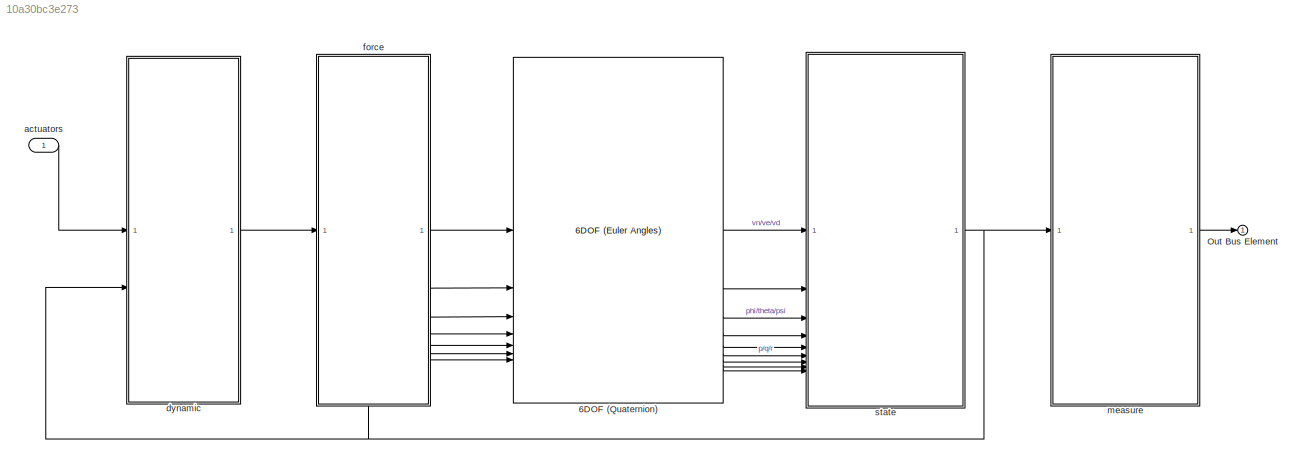
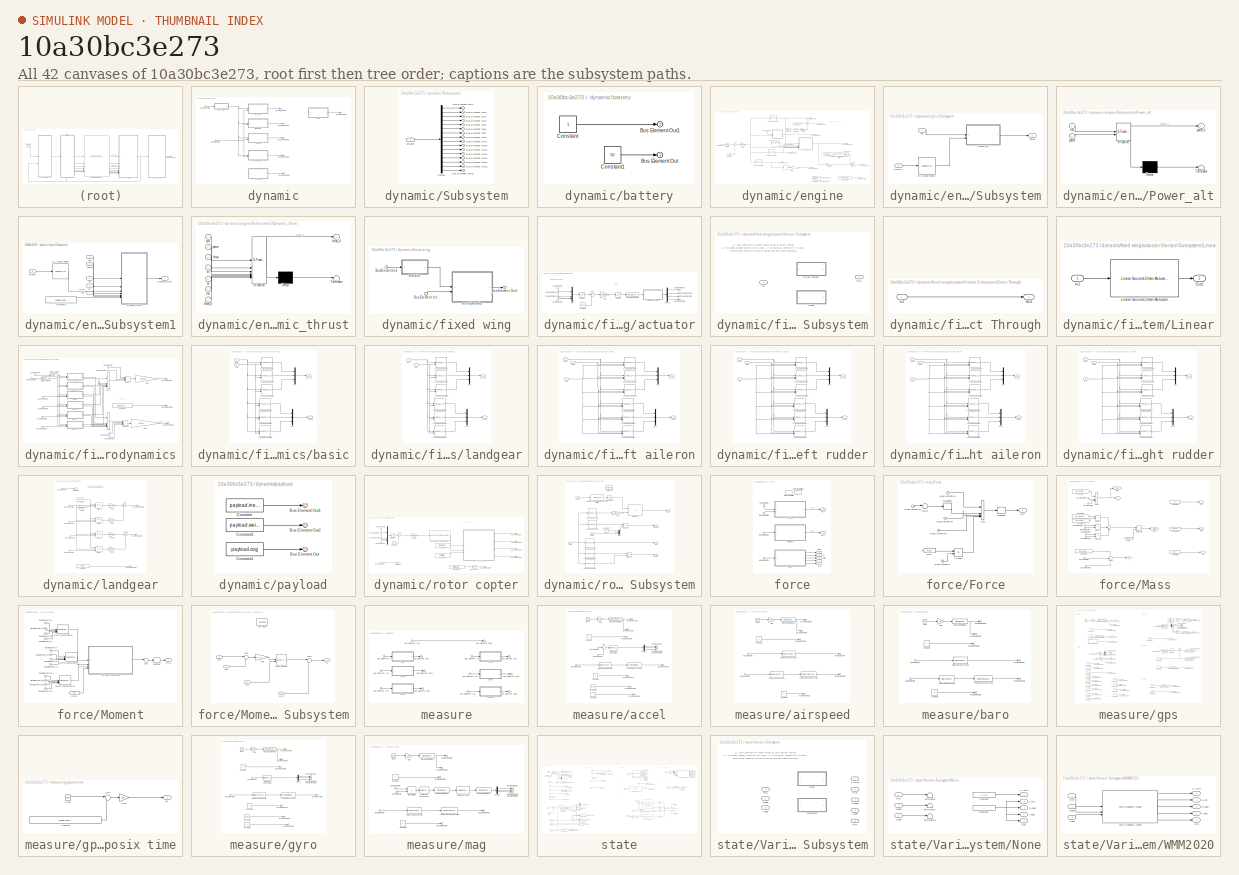
[diagram: thumbnail index - all 42 canvases of the model, root first then tree order]
MODEL slx_10a30bc3e273
KIND model
CONFIG AbsTol = auto
CONFIG EnableMultiTasking = off
CONFIG FixedStep = 5/1000
CONFIG MaxStep = auto
CONFIG MinStep = auto
CONFIG RelTol = 1e-3
CONFIG SampleTimeConstraint = Unconstrained
CONFIG SolverName = FixedStepAuto
CONFIG StartTime = 0
CONFIG StopTime = 200
WORKSPACE source: mxarray member
WORKSPACE Sig: Simulink.Signal (value not decoded)
WORKSPACE Sig1: Simulink.Signal (value not decoded)
WORKSPACE Sig2: Simulink.Signal (value not decoded)
WORKSPACE Sig3: Simulink.Signal (value not decoded)
WORKSPACE Sig4: Simulink.Signal (value not decoded)
WORKSPACE Sig5: Simulink.Signal (value not decoded)
WORKSPACE Sig6: Simulink.Signal (value not decoded)
BLOCK [Reference] 6DOF (Quaternion)  REF=shared6dof/6DOF (Euler Angles)
  LibrarySourceBlock = aerolib6dof2/6DOF (Quaternion)
  SourceBlock = shared6dof/6DOF (Euler Angles)
  SourceType = 6DOF EoM (Body Axis)
BLOCK [Outport] Out Bus Element
BLOCK [Inport] actuators
  OutDataTypeStr = Bus: actuator_outputs_s
BLOCK [SubSystem] dynamic
BLOCK [Inport] dynamic/Bus Element In
  Port = 2
BLOCK [Inport] dynamic/Bus Element In1
BLOCK [Outport] dynamic/Bus Element Out
BLOCK [Outport] dynamic/Bus Element Out1
BLOCK [Outport] dynamic/Bus Element Out2
BLOCK [Outport] dynamic/Bus Element Out3
BLOCK [Outport] dynamic/Bus Element Out4
BLOCK [Outport] dynamic/Bus Element Out5
BLOCK [SubSystem] dynamic/Subsystem
BLOCK [Outport] dynamic/Subsystem/Bus Element Out1
BLOCK [Outport] dynamic/Subsystem/Bus Element Out10
BLOCK [Outport] dynamic/Subsystem/Bus Element Out11
BLOCK [Outport] dynamic/Subsystem/Bus Element Out12
BLOCK [Outport] dynamic/Subsystem/Bus Element Out13
BLOCK [Outport] dynamic/Subsystem/Bus Element Out14
BLOCK [Outport] dynamic/Subsystem/Bus Element Out15
BLOCK [Outport] dynamic/Subsystem/Bus Element Out16
BLOCK [Outport] dynamic/Subsystem/Bus Element Out2
BLOCK [Outport] dynamic/Subsystem/Bus Element Out3
BLOCK [Outport] dynamic/Subsystem/Bus Element Out4
BLOCK [Outport] dynamic/Subsystem/Bus Element Out5
BLOCK [Outport] dynamic/Subsystem/Bus Element Out6
BLOCK [Outport] dynamic/Subsystem/Bus Element Out7
BLOCK [Outport] dynamic/Subsystem/Bus Element Out8
BLOCK [Outport] dynamic/Subsystem/Bus Element Out9
BLOCK [Demux] dynamic/Subsystem/Demux
  Outputs = 16
BLOCK [Inport] dynamic/Subsystem/actuator
BLOCK [SubSystem] dynamic/battery
BLOCK [Outport] dynamic/battery/Bus Element Out
BLOCK [Outport] dynamic/battery/Bus Element Out1
BLOCK [Constant] dynamic/battery/Constant
BLOCK [Constant] dynamic/battery/Constant1
  Value = 50
BLOCK [SubSystem] dynamic/engine
BLOCK [Lookup_n-D] dynamic/engine/1-D Lookup Table
  BeginIndexSearchUsingPreviousIndexResult = on
  BreakpointsForDimension1 = engine.torque.delta
  ExtrapMethod = Clip
  IndexSearchMethod = Linear search
  InputPortMap = u0
  InternalRulePriority = Speed
  NumberOfTableDimensions = 1
  RndMeth = Simplest
  Table = engine.torque.moment
BLOCK [Lookup_n-D] dynamic/engine/1-D Lookup Table1
  BeginIndexSearchUsingPreviousIndexResult = on
  BreakpointsForDimension1 = engine.torque.delta
  ExtrapMethod = Clip
  IndexSearchMethod = Linear search
  InputPortMap = u0
  InternalRulePriority = Speed
  NumberOfTableDimensions = 1
  RndMeth = Simplest
  Table = engine.torque.rpm
BLOCK [Lookup_n-D] dynamic/engine/1-D Lookup Table3
  BeginIndexSearchUsingPreviousIndexResult = on
  BreakpointsForDimension1 = engine.torque.delta
  ExtrapMethod = Clip
  IndexSearchMethod = Linear search
  InputPortMap = u0
  InternalRulePriority = Speed
  NumberOfTableDimensions = 1
  RndMeth = Simplest
  Table = engine.torque.fuel_cons_rate
BLOCK [Outport] dynamic/engine/Bus Element Out1
BLOCK [Outport] dynamic/engine/Bus Element Out10
BLOCK [Outport] dynamic/engine/Bus Element Out11
BLOCK [Outport] dynamic/engine/Bus Element Out2
BLOCK [Outport] dynamic/engine/Bus Element Out3
BLOCK [Outport] dynamic/engine/Bus Element Out4
BLOCK [Outport] dynamic/engine/Bus Element Out5
BLOCK [Outport] dynamic/engine/Bus Element Out6
BLOCK [Outport] dynamic/engine/Bus Element Out7
BLOCK [Outport] dynamic/engine/Bus Element Out8
BLOCK [Outport] dynamic/engine/Bus Element Out9
BLOCK [Inport] dynamic/engine/BusElementIn
BLOCK [Inport] dynamic/engine/BusElementIn1
  Port = 2
BLOCK [Inport] dynamic/engine/BusElementIn2
  Port = 2
BLOCK [Inport] dynamic/engine/BusElementIn4
  Port = 2
BLOCK [Inport] dynamic/engine/BusElementIn5
  Port = 2
BLOCK [Constant] dynamic/engine/Constant
  Value = engine.init_fuel
BLOCK [Constant] dynamic/engine/Constant1
  Value = engine.setup_angle
BLOCK [Constant] dynamic/engine/Constant2
  Value = [0 0 0]
BLOCK [Constant] dynamic/engine/Constant3
  Value = 1000
BLOCK [Constant] dynamic/engine/Constant4
  Value = zeros(3,3)
BLOCK [Constant] dynamic/engine/Constant5
  Value = engine.setup_position
BLOCK [Gain] dynamic/engine/Gain
  Gain = 1/1000
BLOCK [Gain] dynamic/engine/Gain1
  Gain = [-engine.setup_rotation, 0, 0]
BLOCK [Gain] dynamic/engine/Gain2
  Gain = [1 0 0]
BLOCK [Gain] dynamic/engine/Gain3
  Gain = 1/3600
BLOCK [Integrator] dynamic/engine/Integrator
BLOCK [Product] dynamic/engine/Product
  Multiplication = Matrix(*)
BLOCK [Product] dynamic/engine/Product3
BLOCK [Angle2Dcm] dynamic/engine/Rotation Angles to Direction Cosine Matrix
  AttributesFormatString = Rotation Order: %<rotationOrder>
BLOCK [Saturate] dynamic/engine/Saturation
  LowerLimit = 1000
  UpperLimit = 2000
BLOCK [SubSystem] dynamic/engine/Subsystem
BLOCK [Lookup_n-D] dynamic/engine/Subsystem/1-D Lookup Table2
  BeginIndexSearchUsingPreviousIndexResult = on
  BreakpointsForDimension1 = engine.torque.delta
  ExtrapMethod = Clip
  IndexSearchMethod = Linear search
  InputPortMap = u0
  InternalRulePriority = Speed
  NumberOfTableDimensions = 1
  RndMeth = Simplest
  Table = engine.torque.power
BLOCK [SubSystem] dynamic/engine/Subsystem/Power_alt
  ErrorFcn = Stateflow.Translate.translate
  PermitHierarchicalResolution = ExplicitOnly
  SFBlockType = MATLAB Function
  TreatAsAtomicUnit = on
BLOCK [Demux] dynamic/engine/Subsystem/Power_alt/ Demux 
  Outputs = 1
BLOCK [S-Function] dynamic/engine/Subsystem/Power_alt/ SFunction 
  EnableBusSupport = on
  FunctionName = sf_sfun
  PortCounts = [2 2]
  SFcnIsStateOwnerBlock = off
  SFunctionDeploymentMode = off
  Tag = Stateflow S-Function 3
BLOCK [Terminator] dynamic/engine/Subsystem/Power_alt/ Terminator 
BLOCK [Inport] dynamic/engine/Subsystem/Power_alt/power
  Port = 2
BLOCK [Outport] dynamic/engine/Subsystem/Power_alt/power_h
BLOCK [Inport] dynamic/engine/Subsystem/Power_alt/rho
BLOCK [Outport] dynamic/engine/Subsystem/power
BLOCK [Inport] dynamic/engine/Subsystem/rho
BLOCK [Inport] dynamic/engine/Subsystem/throttle
  Port = 2
BLOCK [SubSystem] dynamic/engine/Subsystem1
BLOCK [Lookup_n-D] dynamic/engine/Subsystem1/1-D Lookup Table1
  BeginIndexSearchUsingPreviousIndexResult = on
  BreakpointsForDimension1 = engine.thrust.delta
  ExtrapMethod = Clip
  IndexSearchMethod = Linear search
  InputPortMap = u0
  InternalRulePriority = Speed
  NumberOfTableDimensions = 1
  RndMeth = Simplest
  Table = engine.thrust.force
BLOCK [Constant] dynamic/engine/Subsystem1/Constant2
  Value = engine.propeller_dia
BLOCK [SubSystem] dynamic/engine/Subsystem1/Dynamic_thrust
  ErrorFcn = Stateflow.Translate.translate
  PermitHierarchicalResolution = ExplicitOnly
  SFBlockType = MATLAB Function
  TreatAsAtomicUnit = on
BLOCK [Demux] dynamic/engine/Subsystem1/Dynamic_thrust/ Demux 
  Outputs = 1
BLOCK [S-Function] dynamic/engine/Subsystem1/Dynamic_thrust/ SFunction 
  EnableBusSupport = on
  FunctionName = sf_sfun
  PortCounts = [7 2]
  SFcnIsStateOwnerBlock = off
  SFunctionDeploymentMode = off
  Tag = Stateflow S-Function 1
BLOCK [Terminator] dynamic/engine/Subsystem1/Dynamic_thrust/ Terminator 
BLOCK [Inport] dynamic/engine/Subsystem1/Dynamic_thrust/alt
  Port = 4
BLOCK [Inport] dynamic/engine/Subsystem1/Dynamic_thrust/blade_D
  Port = 7
BLOCK [Inport] dynamic/engine/Subsystem1/Dynamic_thrust/power
  Port = 2
BLOCK [Inport] dynamic/engine/Subsystem1/Dynamic_thrust/rho
  Port = 6
BLOCK [Inport] dynamic/engine/Subsystem1/Dynamic_thrust/rpm
BLOCK [Inport] dynamic/engine/Subsystem1/Dynamic_thrust/thrust
  Port = 3
BLOCK [Outport] dynamic/engine/Subsystem1/Dynamic_thrust/thrust_d
BLOCK [Inport] dynamic/engine/Subsystem1/Dynamic_thrust/va
  Port = 5
BLOCK [Inport] dynamic/engine/Subsystem1/alt
  Port = 3
BLOCK [Outport] dynamic/engine/Subsystem1/dynamic_thrust
BLOCK [Inport] dynamic/engine/Subsystem1/power
BLOCK [Inport] dynamic/engine/Subsystem1/rho
  Port = 4
BLOCK [Inport] dynamic/engine/Subsystem1/rpm
  Port = 6
BLOCK [Inport] dynamic/engine/Subsystem1/throttle
  Port = 5
BLOCK [Inport] dynamic/engine/Subsystem1/va
  Port = 2
BLOCK [Sum] dynamic/engine/Sum
  Inputs = |+-
BLOCK [Sum] dynamic/engine/Sum1
  Inputs = |+-
BLOCK [Math] dynamic/engine/Transpose
  Operator = transpose
BLOCK [SubSystem] dynamic/fixed wing
BLOCK [Inport] dynamic/fixed wing/Bus Element In1
  Port = 2
BLOCK [Outport] dynamic/fixed wing/Bus Element Out1
BLOCK [Inport] dynamic/fixed wing/BusElementIn4
BLOCK [SubSystem] dynamic/fixed wing/actuator
BLOCK [Outport] dynamic/fixed wing/actuator/Bus Element Out
BLOCK [Outport] dynamic/fixed wing/actuator/Bus Element Out1
BLOCK [Outport] dynamic/fixed wing/actuator/Bus Element Out2
BLOCK [Outport] dynamic/fixed wing/actuator/Bus Element Out3
BLOCK [Inport] dynamic/fixed wing/actuator/BusElementIn
BLOCK [Inport] dynamic/fixed wing/actuator/BusElementIn1
BLOCK [Inport] dynamic/fixed wing/actuator/BusElementIn2
BLOCK [Inport] dynamic/fixed wing/actuator/BusElementIn3
BLOCK [Constant] dynamic/fixed wing/actuator/Constant
  Value = 1500
BLOCK [Demux] dynamic/fixed wing/actuator/Demux
BLOCK [Gain] dynamic/fixed wing/actuator/Gain
  Gain = 25/500
BLOCK [Mux] dynamic/fixed wing/actuator/Mux
  DisplayOption = bar
BLOCK [Saturate] dynamic/fixed wing/actuator/Saturation
  LowerLimit = -20
  UpperLimit = 20
BLOCK [Saturate] dynamic/fixed wing/actuator/Saturation1
  LowerLimit = 1000
  UpperLimit = 2000
BLOCK [SignalSpecification] dynamic/fixed wing/actuator/Signal Specification4
  Unit = deg
BLOCK [Sum] dynamic/fixed wing/actuator/Sum
  Inputs = |+-
BLOCK [SubSystem] dynamic/fixed wing/actuator/Variant Subsystem
  Variant = on
BLOCK [SubSystem] dynamic/fixed wing/actuator/Variant Subsystem/Direct Through
  VariantControl = true
BLOCK [Inport] dynamic/fixed wing/actuator/Variant Subsystem/Direct Through/In1
BLOCK [Outport] dynamic/fixed wing/actuator/Variant Subsystem/Direct Through/Out1
BLOCK [Inport] dynamic/fixed wing/actuator/Variant Subsystem/In1
BLOCK [SubSystem] dynamic/fixed wing/actuator/Variant Subsystem/Linear
  VariantControl = false
BLOCK [Inport] dynamic/fixed wing/actuator/Variant Subsystem/Linear/In1
BLOCK [Reference] dynamic/fixed wing/actuator/Variant Subsystem/Linear/Linear Second-Order Actuator  REF=aerolibactuator/Linear Second-Order Actuator
  SourceBlock = aerolibactuator/Linear Second-Order Actuator
  SourceType = LinearSecondOrderActuator
BLOCK [Outport] dynamic/fixed wing/actuator/Variant Subsystem/Linear/Out1
BLOCK [Outport] dynamic/fixed wing/actuator/Variant Subsystem/Out1
BLOCK [SubSystem] dynamic/fixed wing/aerodynamics
BLOCK [Outport] dynamic/fixed wing/aerodynamics/Bus Element Out
BLOCK [Outport] dynamic/fixed wing/aerodynamics/Bus Element Out1
BLOCK [Outport] dynamic/fixed wing/aerodynamics/Bus Element Out3
BLOCK [Inport] dynamic/fixed wing/aerodynamics/BusElementIn
  Port = 2
BLOCK [Inport] dynamic/fixed wing/aerodynamics/BusElementIn1
  Port = 2
BLOCK [Inport] dynamic/fixed wing/aerodynamics/BusElementIn10
BLOCK [Inport] dynamic/fixed wing/aerodynamics/BusElementIn2
  Port = 2
BLOCK [Inport] dynamic/fixed wing/aerodynamics/BusElementIn3
  Port = 2
BLOCK [Inport] dynamic/fixed wing/aerodynamics/BusElementIn5
  Port = 2
BLOCK [Inport] dynamic/fixed wing/aerodynamics/BusElementIn6
  Port = 2
BLOCK [Inport] dynamic/fixed wing/aerodynamics/BusElementIn7
BLOCK [Inport] dynamic/fixed wing/aerodynamics/BusElementIn8
BLOCK [Inport] dynamic/fixed wing/aerodynamics/BusElementIn9
BLOCK [Constant] dynamic/fixed wing/aerodynamics/Constant
  Value = mass.ref_center
BLOCK [Gain] dynamic/fixed wing/aerodynamics/Gain
  Gain = 1/2*aerody.wing_aera
BLOCK [Gain] dynamic/fixed wing/aerodynamics/Gain1
  Gain = 1/2*aerody.wing_aera*[aerody.chord, aerody.chord, aerody.chord]
BLOCK [Product] dynamic/fixed wing/aerodynamics/Product
  Inputs = 4
BLOCK [Product] dynamic/fixed wing/aerodynamics/Product1
  Inputs = 4
BLOCK [Sum] dynamic/fixed wing/aerodynamics/Sum
  IconShape = rectangular
  Inputs = 6
BLOCK [Sum] dynamic/fixed wing/aerodynamics/Sum1
  IconShape = rectangular
  Inputs = 6
BLOCK [UnitConversion] dynamic/fixed wing/aerodynamics/Unit Conversion
BLOCK [UnitConversion] dynamic/fixed wing/aerodynamics/Unit Conversion1
BLOCK [SubSystem] dynamic/fixed wing/aerodynamics/basic
BLOCK [Lookup_n-D] dynamic/fixed wing/aerodynamics/basic/2-D Lookup Table
  BeginIndexSearchUsingPreviousIndexResult = on
  BreakpointsForDimension1 = aerody.basic.cx.alpha
  BreakpointsForDimension1FirstPoint = 10
  BreakpointsForDimension1Spacing = 12
  BreakpointsForDimension2 = aerody.basic.cx.beta
  BreakpointsForDimension2FirstPoint = 10
  BreakpointsForDimension2Spacing = 12
  DiagnosticForOutOfRangeInput = Warning
  ExtrapMethod = Clip
  IndexSearchMethod = Linear search
  InputPortMap = u0,u1
  InternalRulePriority = Speed
  LookupTableObject = ''
  RndMeth = Simplest
  Table = aerody.basic.cx.coeff
BLOCK [Lookup_n-D] dynamic/fixed wing/aerodynamics/basic/2-D Lookup Table1
  BeginIndexSearchUsingPreviousIndexResult = on
  BreakpointsForDimension1 = aerody.basic.cy.alpha
  BreakpointsForDimension1FirstPoint = 10
  BreakpointsForDimension1Spacing = 12
  BreakpointsForDimension2 = aerody.basic.cy.beta
  BreakpointsForDimension2FirstPoint = 10
  BreakpointsForDimension2Spacing = 12
  DiagnosticForOutOfRangeInput = Warning
  ExtrapMethod = Clip
  IndexSearchMethod = Linear search
  InputPortMap = u0,u1
  InternalRulePriority = Speed
  LookupTableObject = ''
  RndMeth = Simplest
  Table = aerody.basic.cy.coeff
BLOCK [Lookup_n-D] dynamic/fixed wing/aerodynamics/basic/2-D Lookup Table2
  BeginIndexSearchUsingPreviousIndexResult = on
  BreakpointsForDimension1 = aerody.basic.cz.alpha
  BreakpointsForDimension1FirstPoint = 10
  BreakpointsForDimension1Spacing = 12
  BreakpointsForDimension2 = aerody.basic.cz.beta
  BreakpointsForDimension2FirstPoint = 10
  BreakpointsForDimension2Spacing = 12
  DiagnosticForOutOfRangeInput = Warning
  ExtrapMethod = Clip
  IndexSearchMethod = Linear search
  InputPortMap = u0,u1
  InternalRulePriority = Speed
  LookupTableObject = ''
  RndMeth = Simplest
  Table = aerody.basic.cz.coeff
BLOCK [Lookup_n-D] dynamic/fixed wing/aerodynamics/basic/2-D Lookup Table3
  BeginIndexSearchUsingPreviousIndexResult = on
  BreakpointsForDimension1 = aerody.basic.cll.alpha
  BreakpointsForDimension1FirstPoint = 10
  BreakpointsForDimension1Spacing = 12
  BreakpointsForDimension2 = aerody.basic.cll.beta
  BreakpointsForDimension2FirstPoint = 10
  BreakpointsForDimension2Spacing = 12
  DiagnosticForOutOfRangeInput = Warning
  ExtrapMethod = Clip
  IndexSearchMethod = Linear search
  InputPortMap = u0,u1
  InternalRulePriority = Speed
  LookupTableObject = ''
  RndMeth = Simplest
  Table = aerody.basic.cll.coeff
BLOCK [Lookup_n-D] dynamic/fixed wing/aerodynamics/basic/2-D Lookup Table4
  BeginIndexSearchUsingPreviousIndexResult = on
  BreakpointsForDimension1 = aerody.basic.cm.alpha
  BreakpointsForDimension1FirstPoint = 10
  BreakpointsForDimension1Spacing = 12
  BreakpointsForDimension2 = aerody.basic.cm.beta
  BreakpointsForDimension2FirstPoint = 10
  BreakpointsForDimension2Spacing = 12
  DiagnosticForOutOfRangeInput = Warning
  ExtrapMethod = Clip
  IndexSearchMethod = Linear search
  InputPortMap = u0,u1
  InternalRulePriority = Speed
  LookupTableObject = ''
  RndMeth = Simplest
  Table = aerody.basic.cm.coeff
BLOCK [Lookup_n-D] dynamic/fixed wing/aerodynamics/basic/2-D Lookup Table5
  BeginIndexSearchUsingPreviousIndexResult = on
  BreakpointsForDimension1 = aerody.basic.cn.alpha
  BreakpointsForDimension1FirstPoint = 10
  BreakpointsForDimension1Spacing = 12
  BreakpointsForDimension2 = aerody.basic.cn.beta
  BreakpointsForDimension2FirstPoint = 10
  BreakpointsForDimension2Spacing = 12
  DiagnosticForOutOfRangeInput = Warning
  ExtrapMethod = Clip
  IndexSearchMethod = Linear search
  InputPortMap = u0,u1
  InternalRulePriority = Speed
  LookupTableObject = ''
  RndMeth = Simplest
  Table = aerody.basic.cn.coeff
BLOCK [Mux] dynamic/fixed wing/aerodynamics/basic/Mux
  DisplayOption = bar
  Inputs = 3
BLOCK [Mux] dynamic/fixed wing/aerodynamics/basic/Mux1
  DisplayOption = bar
  Inputs = 3
BLOCK [Inport] dynamic/fixed wing/aerodynamics/basic/alpha
  Unit = deg
BLOCK [Inport] dynamic/fixed wing/aerodynamics/basic/beta
  Port = 2
  Unit = deg
BLOCK [Outport] dynamic/fixed wing/aerodynamics/basic/clcmcn
  Port = 2
BLOCK [Outport] dynamic/fixed wing/aerodynamics/basic/cxcycz
BLOCK [SubSystem] dynamic/fixed wing/aerodynamics/landgear
BLOCK [Lookup_n-D] dynamic/fixed wing/aerodynamics/landgear/2-D Lookup Table
  BeginIndexSearchUsingPreviousIndexResult = on
  BreakpointsForDimension1 = aerody.landgear.cx.alpha
  BreakpointsForDimension1FirstPoint = 10
  BreakpointsForDimension1Spacing = 12
  BreakpointsForDimension2 = aerody.landgear.cx.beta
  BreakpointsForDimension2FirstPoint = 10
  BreakpointsForDimension2Spacing = 12
  DiagnosticForOutOfRangeInput = Warning
  ExtrapMethod = Clip
  IndexSearchMethod = Linear search
  InputPortMap = u0,u1
  InternalRulePriority = Speed
  LookupTableObject = ''
  RndMeth = Simplest
  Table = aerody.landgear.cx.coeff
BLOCK [Lookup_n-D] dynamic/fixed wing/aerodynamics/landgear/2-D Lookup Table1
  BeginIndexSearchUsingPreviousIndexResult = on
  BreakpointsForDimension1 = aerody.landgear.cy.alpha
  BreakpointsForDimension1FirstPoint = 10
  BreakpointsForDimension1Spacing = 12
  BreakpointsForDimension2 = aerody.landgear.cy.beta
  BreakpointsForDimension2FirstPoint = 10
  BreakpointsForDimension2Spacing = 12
  DiagnosticForOutOfRangeInput = Warning
  ExtrapMethod = Clip
  IndexSearchMethod = Linear search
  InputPortMap = u0,u1
  InternalRulePriority = Speed
  LookupTableObject = ''
  RndMeth = Simplest
  Table = aerody.landgear.cy.coeff
BLOCK [Lookup_n-D] dynamic/fixed wing/aerodynamics/landgear/2-D Lookup Table2
  BeginIndexSearchUsingPreviousIndexResult = on
  BreakpointsForDimension1 = aerody.landgear.cz.alpha
  BreakpointsForDimension1FirstPoint = 10
  BreakpointsForDimension1Spacing = 12
  BreakpointsForDimension2 = aerody.landgear.cz.beta
  BreakpointsForDimension2FirstPoint = 10
  BreakpointsForDimension2Spacing = 12
  DiagnosticForOutOfRangeInput = Warning
  ExtrapMethod = Clip
  IndexSearchMethod = Linear search
  InputPortMap = u0,u1
  InternalRulePriority = Speed
  LookupTableObject = ''
  RndMeth = Simplest
  Table = aerody.landgear.cz.coeff
BLOCK [Lookup_n-D] dynamic/fixed wing/aerodynamics/landgear/2-D Lookup Table3
  BeginIndexSearchUsingPreviousIndexResult = on
  BreakpointsForDimension1 = aerody.landgear.cll.alpha
  BreakpointsForDimension1FirstPoint = 10
  BreakpointsForDimension1Spacing = 12
  BreakpointsForDimension2 = aerody.landgear.cll.beta
  BreakpointsForDimension2FirstPoint = 10
  BreakpointsForDimension2Spacing = 12
  DiagnosticForOutOfRangeInput = Warning
  ExtrapMethod = Clip
  IndexSearchMethod = Linear search
  InputPortMap = u0,u1
  InternalRulePriority = Speed
  LookupTableObject = ''
  RndMeth = Simplest
  Table = aerody.landgear.cll.coeff
BLOCK [Lookup_n-D] dynamic/fixed wing/aerodynamics/landgear/2-D Lookup Table4
  BeginIndexSearchUsingPreviousIndexResult = on
  BreakpointsForDimension1 = aerody.landgear.cm.alpha
  BreakpointsForDimension1FirstPoint = 10
  BreakpointsForDimension1Spacing = 12
  BreakpointsForDimension2 = aerody.landgear.cm.beta
  BreakpointsForDimension2FirstPoint = 10
  BreakpointsForDimension2Spacing = 12
  DiagnosticForOutOfRangeInput = Warning
  ExtrapMethod = Clip
  IndexSearchMethod = Linear search
  InputPortMap = u0,u1
  InternalRulePriority = Speed
  LookupTableObject = ''
  RndMeth = Simplest
  Table = aerody.landgear.cm.coeff
BLOCK [Lookup_n-D] dynamic/fixed wing/aerodynamics/landgear/2-D Lookup Table5
  BeginIndexSearchUsingPreviousIndexResult = on
  BreakpointsForDimension1 = aerody.landgear.cn.alpha
  BreakpointsForDimension1FirstPoint = 10
  BreakpointsForDimension1Spacing = 12
  BreakpointsForDimension2 = aerody.landgear.cn.beta
  BreakpointsForDimension2FirstPoint = 10
  BreakpointsForDimension2Spacing = 12
  DiagnosticForOutOfRangeInput = Warning
  ExtrapMethod = Clip
  IndexSearchMethod = Linear search
  InputPortMap = u0,u1
  InternalRulePriority = Speed
  LookupTableObject = ''
  RndMeth = Simplest
  Table = aerody.landgear.cn.coeff
BLOCK [Mux] dynamic/fixed wing/aerodynamics/landgear/Mux
  DisplayOption = bar
  Inputs = 3
BLOCK [Mux] dynamic/fixed wing/aerodynamics/landgear/Mux1
  DisplayOption = bar
  Inputs = 3
BLOCK [Inport] dynamic/fixed wing/aerodynamics/landgear/alpha
BLOCK [Inport] dynamic/fixed wing/aerodynamics/landgear/beta
  Port = 2
BLOCK [Outport] dynamic/fixed wing/aerodynamics/landgear/clcmcn
  Port = 2
BLOCK [Outport] dynamic/fixed wing/aerodynamics/landgear/cxcycz
BLOCK [SubSystem] dynamic/fixed wing/aerodynamics/left aileron
BLOCK [Lookup_n-D] dynamic/fixed wing/aerodynamics/left aileron/2-D Lookup Table
  BeginIndexSearchUsingPreviousIndexResult = on
  BreakpointsForDimension1 = aerody.left_aileron.cx.alpha
  BreakpointsForDimension1FirstPoint = 10
  BreakpointsForDimension1Spacing = 12
  BreakpointsForDimension2 = aerody.left_aileron.cx.beta
  BreakpointsForDimension2FirstPoint = 10
  BreakpointsForDimension2Spacing = 12
  BreakpointsForDimension3 = aerody.left_aileron.cx.delta
  DiagnosticForOutOfRangeInput = Warning
  ExtrapMethod = Clip
  IndexSearchMethod = Linear search
  InputPortMap = u0,u1,u2
  InternalRulePriority = Speed
  LookupTableObject = ''
  NumberOfTableDimensions = 3
  RndMeth = Simplest
  Table = aerody.left_aileron.cx.coeff
BLOCK [Lookup_n-D] dynamic/fixed wing/aerodynamics/left aileron/2-D Lookup Table1
  BeginIndexSearchUsingPreviousIndexResult = on
  BreakpointsForDimension1 = aerody.left_aileron.cz.alpha
  BreakpointsForDimension1FirstPoint = 10
  BreakpointsForDimension1Spacing = 12
  BreakpointsForDimension2 = aerody.left_aileron.cz.beta
  BreakpointsForDimension2FirstPoint = 10
  BreakpointsForDimension2Spacing = 12
  BreakpointsForDimension3 = aerody.left_aileron.cz.delta
  DiagnosticForOutOfRangeInput = Warning
  ExtrapMethod = Clip
  IndexSearchMethod = Linear search
  InputPortMap = u0,u1,u2
  InternalRulePriority = Speed
  LookupTableObject = ''
  NumberOfTableDimensions = 3
  RndMeth = Simplest
  Table = aerody.left_aileron.cz.coeff
BLOCK [Lookup_n-D] dynamic/fixed wing/aerodynamics/left aileron/2-D Lookup Table2
  BeginIndexSearchUsingPreviousIndexResult = on
  BreakpointsForDimension1 = aerody.left_aileron.cll.alpha
  BreakpointsForDimension1FirstPoint = 10
  BreakpointsForDimension1Spacing = 12
  BreakpointsForDimension2 = aerody.left_aileron.cll.beta
  BreakpointsForDimension2FirstPoint = 10
  BreakpointsForDimension2Spacing = 12
  BreakpointsForDimension3 = aerody.left_aileron.cll.delta
  DiagnosticForOutOfRangeInput = Warning
  ExtrapMethod = Clip
  IndexSearchMethod = Linear search
  InputPortMap = u0,u1,u2
  InternalRulePriority = Speed
  LookupTableObject = ''
  NumberOfTableDimensions = 3
  RndMeth = Simplest
  Table = aerody.left_aileron.cll.coeff
BLOCK [Lookup_n-D] dynamic/fixed wing/aerodynamics/left aileron/2-D Lookup Table3
  BeginIndexSearchUsingPreviousIndexResult = on
  BreakpointsForDimension1 = aerody.left_aileron.cm.alpha
  BreakpointsForDimension1FirstPoint = 10
  BreakpointsForDimension1Spacing = 12
  BreakpointsForDimension2 = aerody.left_aileron.cm.beta
  BreakpointsForDimension2FirstPoint = 10
  BreakpointsForDimension2Spacing = 12
  BreakpointsForDimension3 = aerody.left_aileron.cm.delta
  DiagnosticForOutOfRangeInput = Warning
  ExtrapMethod = Clip
  IndexSearchMethod = Linear search
  InputPortMap = u0,u1,u2
  InternalRulePriority = Speed
  LookupTableObject = ''
  NumberOfTableDimensions = 3
  RndMeth = Simplest
  Table = aerody.left_aileron.cm.coeff
BLOCK [Lookup_n-D] dynamic/fixed wing/aerodynamics/left aileron/2-D Lookup Table4
  BeginIndexSearchUsingPreviousIndexResult = on
  BreakpointsForDimension1 = aerody.left_aileron.cn.alpha
  BreakpointsForDimension1FirstPoint = 10
  BreakpointsForDimension1Spacing = 12
  BreakpointsForDimension2 = aerody.left_aileron.cn.beta
  BreakpointsForDimension2FirstPoint = 10
  BreakpointsForDimension2Spacing = 12
  BreakpointsForDimension3 = aerody.left_aileron.cn.delta
  DiagnosticForOutOfRangeInput = Warning
  ExtrapMethod = Clip
  IndexSearchMethod = Linear search
  InputPortMap = u0,u1,u2
  InternalRulePriority = Speed
  LookupTableObject = ''
  NumberOfTableDimensions = 3
  RndMeth = Simplest
  Table = aerody.left_aileron.cn.coeff
BLOCK [Lookup_n-D] dynamic/fixed wing/aerodynamics/left aileron/2-D Lookup Table6
  BeginIndexSearchUsingPreviousIndexResult = on
  BreakpointsForDimension1 = aerody.left_aileron.cy.alpha
  BreakpointsForDimension1FirstPoint = 10
  BreakpointsForDimension1Spacing = 12
  BreakpointsForDimension2 = aerody.left_aileron.cy.beta
  BreakpointsForDimension2FirstPoint = 10
  BreakpointsForDimension2Spacing = 12
  BreakpointsForDimension3 = aerody.left_aileron.cy.delta
  DiagnosticForOutOfRangeInput = Warning
  ExtrapMethod = Clip
  IndexSearchMethod = Linear search
  InputPortMap = u0,u1,u2
  InternalRulePriority = Speed
  LookupTableObject = ''
  NumberOfTableDimensions = 3
  RndMeth = Simplest
  Table = aerody.left_aileron.cy.coeff
BLOCK [Mux] dynamic/fixed wing/aerodynamics/left aileron/Mux
  DisplayOption = bar
  Inputs = 3
BLOCK [Mux] dynamic/fixed wing/aerodynamics/left aileron/Mux1
  DisplayOption = bar
  Inputs = 3
BLOCK [Inport] dynamic/fixed wing/aerodynamics/left aileron/alpha
BLOCK [Inport] dynamic/fixed wing/aerodynamics/left aileron/beta
  Port = 2
BLOCK [Outport] dynamic/fixed wing/aerodynamics/left aileron/clcmcn
  Port = 2
BLOCK [Outport] dynamic/fixed wing/aerodynamics/left aileron/cxcycz
BLOCK [Inport] dynamic/fixed wing/aerodynamics/left aileron/dla
  Port = 3
BLOCK [SubSystem] dynamic/fixed wing/aerodynamics/left rudder
BLOCK [Lookup_n-D] dynamic/fixed wing/aerodynamics/left rudder/2-D Lookup Table
  BeginIndexSearchUsingPreviousIndexResult = on
  BreakpointsForDimension1 = aerody.left_rudder.cx.alpha
  BreakpointsForDimension1FirstPoint = 10
  BreakpointsForDimension1Spacing = 12
  BreakpointsForDimension2 = aerody.left_rudder.cx.beta
  BreakpointsForDimension2FirstPoint = 10
  BreakpointsForDimension2Spacing = 12
  BreakpointsForDimension3 = aerody.left_rudder.cx.delta
  DiagnosticForOutOfRangeInput = Warning
  ExtrapMethod = Clip
  IndexSearchMethod = Linear search
  InputPortMap = u0,u1,u2
  InternalRulePriority = Speed
  LookupTableObject = ''
  NumberOfTableDimensions = 3
  RndMeth = Simplest
  Table = aerody.left_rudder.cx.coeff
BLOCK [Lookup_n-D] dynamic/fixed wing/aerodynamics/left rudder/2-D Lookup Table1
  BeginIndexSearchUsingPreviousIndexResult = on
  BreakpointsForDimension1 = aerody.left_rudder.cy.alpha
  BreakpointsForDimension1FirstPoint = 10
  BreakpointsForDimension1Spacing = 12
  BreakpointsForDimension2 = aerody.left_rudder.cy.beta
  BreakpointsForDimension2FirstPoint = 10
  BreakpointsForDimension2Spacing = 12
  BreakpointsForDimension3 = aerody.left_rudder.cy.delta
  DiagnosticForOutOfRangeInput = Warning
  ExtrapMethod = Clip
  IndexSearchMethod = Linear search
  InputPortMap = u0,u1,u2
  InternalRulePriority = Speed
  LookupTableObject = ''
  NumberOfTableDimensions = 3
  RndMeth = Simplest
  Table = aerody.left_rudder.cy.coeff
BLOCK [Lookup_n-D] dynamic/fixed wing/aerodynamics/left rudder/2-D Lookup Table2
  BeginIndexSearchUsingPreviousIndexResult = on
  BreakpointsForDimension1 = aerody.left_rudder.cz.alpha
  BreakpointsForDimension1FirstPoint = 10
  BreakpointsForDimension1Spacing = 12
  BreakpointsForDimension2 = aerody.left_rudder.cz.beta
  BreakpointsForDimension2FirstPoint = 10
  BreakpointsForDimension2Spacing = 12
  BreakpointsForDimension3 = aerody.left_rudder.cz.delta
  DiagnosticForOutOfRangeInput = Warning
  ExtrapMethod = Clip
  IndexSearchMethod = Linear search
  InputPortMap = u0,u1,u2
  InternalRulePriority = Speed
  LookupTableObject = ''
  NumberOfTableDimensions = 3
  RndMeth = Simplest
  Table = aerody.left_rudder.cz.coeff
BLOCK [Lookup_n-D] dynamic/fixed wing/aerodynamics/left rudder/2-D Lookup Table3
  BeginIndexSearchUsingPreviousIndexResult = on
  BreakpointsForDimension1 = aerody.left_rudder.cll.alpha
  BreakpointsForDimension1FirstPoint = 10
  BreakpointsForDimension1Spacing = 12
  BreakpointsForDimension2 = aerody.left_rudder.cll.beta
  BreakpointsForDimension2FirstPoint = 10
  BreakpointsForDimension2Spacing = 12
  BreakpointsForDimension3 = aerody.left_rudder.cll.delta
  DiagnosticForOutOfRangeInput = Warning
  ExtrapMethod = Clip
  IndexSearchMethod = Linear search
  InputPortMap = u0,u1,u2
  InternalRulePriority = Speed
  LookupTableObject = ''
  NumberOfTableDimensions = 3
  RndMeth = Simplest
  Table = aerody.left_rudder.cll.coeff
BLOCK [Lookup_n-D] dynamic/fixed wing/aerodynamics/left rudder/2-D Lookup Table4
  BeginIndexSearchUsingPreviousIndexResult = on
  BreakpointsForDimension1 = aerody.left_rudder.cm.alpha
  BreakpointsForDimension1FirstPoint = 10
  BreakpointsForDimension1Spacing = 12
  BreakpointsForDimension2 = aerody.left_rudder.cm.beta
  BreakpointsForDimension2FirstPoint = 10
  BreakpointsForDimension2Spacing = 12
  BreakpointsForDimension3 = aerody.left_rudder.cm.delta
  DiagnosticForOutOfRangeInput = Warning
  ExtrapMethod = Clip
  IndexSearchMethod = Linear search
  InputPortMap = u0,u1,u2
  InternalRulePriority = Speed
  LookupTableObject = ''
  NumberOfTableDimensions = 3
  RndMeth = Simplest
  Table = aerody.left_rudder.cm.coeff
BLOCK [Lookup_n-D] dynamic/fixed wing/aerodynamics/left rudder/2-D Lookup Table5
  BeginIndexSearchUsingPreviousIndexResult = on
  BreakpointsForDimension1 = aerody.left_rudder.cn.alpha
  BreakpointsForDimension1FirstPoint = 10
  BreakpointsForDimension1Spacing = 12
  BreakpointsForDimension2 = aerody.left_rudder.cn.beta
  BreakpointsForDimension2FirstPoint = 10
  BreakpointsForDimension2Spacing = 12
  BreakpointsForDimension3 = aerody.left_rudder.cn.delta
  DiagnosticForOutOfRangeInput = Warning
  ExtrapMethod = Clip
  IndexSearchMethod = Linear search
  InputPortMap = u0,u1,u2
  InternalRulePriority = Speed
  LookupTableObject = ''
  NumberOfTableDimensions = 3
  RndMeth = Simplest
  Table = aerody.left_rudder.cn.coeff
BLOCK [Mux] dynamic/fixed wing/aerodynamics/left rudder/Mux
  DisplayOption = bar
  Inputs = 3
BLOCK [Mux] dynamic/fixed wing/aerodynamics/left rudder/Mux1
  DisplayOption = bar
  Inputs = 3
BLOCK [Inport] dynamic/fixed wing/aerodynamics/left rudder/alpha
BLOCK [Inport] dynamic/fixed wing/aerodynamics/left rudder/beta
  Port = 2
BLOCK [Outport] dynamic/fixed wing/aerodynamics/left rudder/clcmcn
  Port = 2
BLOCK [Outport] dynamic/fixed wing/aerodynamics/left rudder/cxcycz
BLOCK [Inport] dynamic/fixed wing/aerodynamics/left rudder/dlr
  Port = 3
BLOCK [SubSystem] dynamic/fixed wing/aerodynamics/right aileron
BLOCK [Lookup_n-D] dynamic/fixed wing/aerodynamics/right aileron/2-D Lookup Table
  BeginIndexSearchUsingPreviousIndexResult = on
  BreakpointsForDimension1 = aerody.right_aileron.cx.alpha
  BreakpointsForDimension1FirstPoint = 10
  BreakpointsForDimension1Spacing = 12
  BreakpointsForDimension2 = aerody.right_aileron.cx.beta
  BreakpointsForDimension2FirstPoint = 10
  BreakpointsForDimension2Spacing = 12
  BreakpointsForDimension3 = aerody.right_aileron.cx.delta
  DiagnosticForOutOfRangeInput = Warning
  ExtrapMethod = Clip
  IndexSearchMethod = Linear search
  InputPortMap = u0,u1,u2
  InternalRulePriority = Speed
  LookupTableObject = ''
  NumberOfTableDimensions = 3
  RndMeth = Simplest
  Table = aerody.right_aileron.cx.coeff
BLOCK [Lookup_n-D] dynamic/fixed wing/aerodynamics/right aileron/2-D Lookup Table1
  BeginIndexSearchUsingPreviousIndexResult = on
  BreakpointsForDimension1 = aerody.right_aileron.cy.alpha
  BreakpointsForDimension1FirstPoint = 10
  BreakpointsForDimension1Spacing = 12
  BreakpointsForDimension2 = aerody.right_aileron.cy.beta
  BreakpointsForDimension2FirstPoint = 10
  BreakpointsForDimension2Spacing = 12
  BreakpointsForDimension3 = aerody.right_aileron.cy.delta
  DiagnosticForOutOfRangeInput = Warning
  ExtrapMethod = Clip
  IndexSearchMethod = Linear search
  InputPortMap = u0,u1,u2
  InternalRulePriority = Speed
  LookupTableObject = ''
  NumberOfTableDimensions = 3
  RndMeth = Simplest
  Table = aerody.right_aileron.cy.coeff
BLOCK [Lookup_n-D] dynamic/fixed wing/aerodynamics/right aileron/2-D Lookup Table2
  BeginIndexSearchUsingPreviousIndexResult = on
  BreakpointsForDimension1 = aerody.right_aileron.cz.alpha
  BreakpointsForDimension1FirstPoint = 10
  BreakpointsForDimension1Spacing = 12
  BreakpointsForDimension2 = aerody.right_aileron.cz.beta
  BreakpointsForDimension2FirstPoint = 10
  BreakpointsForDimension2Spacing = 12
  BreakpointsForDimension3 = aerody.right_aileron.cz.delta
  DiagnosticForOutOfRangeInput = Warning
  ExtrapMethod = Clip
  IndexSearchMethod = Linear search
  InputPortMap = u0,u1,u2
  InternalRulePriority = Speed
  LookupTableObject = ''
  NumberOfTableDimensions = 3
  RndMeth = Simplest
  Table = aerody.right_aileron.cz.coeff
BLOCK [Lookup_n-D] dynamic/fixed wing/aerodynamics/right aileron/2-D Lookup Table3
  BeginIndexSearchUsingPreviousIndexResult = on
  BreakpointsForDimension1 = aerody.right_aileron.cll.alpha
  BreakpointsForDimension1FirstPoint = 10
  BreakpointsForDimension1Spacing = 12
  BreakpointsForDimension2 = aerody.right_aileron.cll.beta
  BreakpointsForDimension2FirstPoint = 10
  BreakpointsForDimension2Spacing = 12
  BreakpointsForDimension3 = aerody.right_aileron.cll.delta
  DiagnosticForOutOfRangeInput = Warning
  ExtrapMethod = Clip
  IndexSearchMethod = Linear search
  InputPortMap = u0,u1,u2
  InternalRulePriority = Speed
  LookupTableObject = ''
  NumberOfTableDimensions = 3
  RndMeth = Simplest
  Table = aerody.right_aileron.cll.coeff
BLOCK [Lookup_n-D] dynamic/fixed wing/aerodynamics/right aileron/2-D Lookup Table4
  BeginIndexSearchUsingPreviousIndexResult = on
  BreakpointsForDimension1 = aerody.right_aileron.cm.alpha
  BreakpointsForDimension1FirstPoint = 10
  BreakpointsForDimension1Spacing = 12
  BreakpointsForDimension2 = aerody.right_aileron.cm.beta
  BreakpointsForDimension2FirstPoint = 10
  BreakpointsForDimension2Spacing = 12
  BreakpointsForDimension3 = aerody.right_aileron.cm.delta
  DiagnosticForOutOfRangeInput = Warning
  ExtrapMethod = Clip
  IndexSearchMethod = Linear search
  InputPortMap = u0,u1,u2
  InternalRulePriority = Speed
  LookupTableObject = ''
  NumberOfTableDimensions = 3
  RndMeth = Simplest
  Table = aerody.right_aileron.cm.coeff
BLOCK [Lookup_n-D] dynamic/fixed wing/aerodynamics/right aileron/2-D Lookup Table5
  BeginIndexSearchUsingPreviousIndexResult = on
  BreakpointsForDimension1 = aerody.right_aileron.cn.alpha
  BreakpointsForDimension1FirstPoint = 10
  BreakpointsForDimension1Spacing = 12
  BreakpointsForDimension2 = aerody.right_aileron.cn.beta
  BreakpointsForDimension2FirstPoint = 10
  BreakpointsForDimension2Spacing = 12
  BreakpointsForDimension3 = aerody.right_aileron.cn.delta
  DiagnosticForOutOfRangeInput = Warning
  ExtrapMethod = Clip
  IndexSearchMethod = Linear search
  InputPortMap = u0,u1,u2
  InternalRulePriority = Speed
  LookupTableObject = ''
  NumberOfTableDimensions = 3
  RndMeth = Simplest
  Table = aerody.right_aileron.cn.coeff
BLOCK [Mux] dynamic/fixed wing/aerodynamics/right aileron/Mux
  DisplayOption = bar
  Inputs = 3
BLOCK [Mux] dynamic/fixed wing/aerodynamics/right aileron/Mux1
  DisplayOption = bar
  Inputs = 3
BLOCK [Inport] dynamic/fixed wing/aerodynamics/right aileron/alpha
BLOCK [Inport] dynamic/fixed wing/aerodynamics/right aileron/beta
  Port = 2
BLOCK [Outport] dynamic/fixed wing/aerodynamics/right aileron/clcmcn
  Port = 2
BLOCK [Outport] dynamic/fixed wing/aerodynamics/right aileron/cxcycz
BLOCK [Inport] dynamic/fixed wing/aerodynamics/right aileron/dra
  Port = 3
BLOCK [SubSystem] dynamic/fixed wing/aerodynamics/right rudder
BLOCK [Lookup_n-D] dynamic/fixed wing/aerodynamics/right rudder/2-D Lookup Table
  BeginIndexSearchUsingPreviousIndexResult = on
  BreakpointsForDimension1 = aerody.right_rudder.cx.alpha
  BreakpointsForDimension1FirstPoint = 10
  BreakpointsForDimension1Spacing = 12
  BreakpointsForDimension2 = aerody.right_rudder.cx.beta
  BreakpointsForDimension2FirstPoint = 10
  BreakpointsForDimension2Spacing = 12
  BreakpointsForDimension3 = aerody.right_rudder.cx.delta
  DiagnosticForOutOfRangeInput = Warning
  ExtrapMethod = Clip
  IndexSearchMethod = Linear search
  InputPortMap = u0,u1,u2
  InternalRulePriority = Speed
  LookupTableObject = ''
  NumberOfTableDimensions = 3
  RndMeth = Simplest
  Table = aerody.right_rudder.cx.coeff
BLOCK [Lookup_n-D] dynamic/fixed wing/aerodynamics/right rudder/2-D Lookup Table1
  BeginIndexSearchUsingPreviousIndexResult = on
  BreakpointsForDimension1 = aerody.right_rudder.cy.alpha
  BreakpointsForDimension1FirstPoint = 10
  BreakpointsForDimension1Spacing = 12
  BreakpointsForDimension2 = aerody.right_rudder.cy.beta
  BreakpointsForDimension2FirstPoint = 10
  BreakpointsForDimension2Spacing = 12
  BreakpointsForDimension3 = aerody.right_rudder.cy.delta
  DiagnosticForOutOfRangeInput = Warning
  ExtrapMethod = Clip
  IndexSearchMethod = Linear search
  InputPortMap = u0,u1,u2
  InternalRulePriority = Speed
  LookupTableObject = ''
  NumberOfTableDimensions = 3
  RndMeth = Simplest
  Table = aerody.right_rudder.cy.coeff
BLOCK [Lookup_n-D] dynamic/fixed wing/aerodynamics/right rudder/2-D Lookup Table2
  BeginIndexSearchUsingPreviousIndexResult = on
  BreakpointsForDimension1 = aerody.right_rudder.cz.alpha
  BreakpointsForDimension1FirstPoint = 10
  BreakpointsForDimension1Spacing = 12
  BreakpointsForDimension2 = aerody.right_rudder.cz.beta
  BreakpointsForDimension2FirstPoint = 10
  BreakpointsForDimension2Spacing = 12
  BreakpointsForDimension3 = aerody.right_rudder.cz.delta
  DiagnosticForOutOfRangeInput = Warning
  ExtrapMethod = Clip
  IndexSearchMethod = Linear search
  InputPortMap = u0,u1,u2
  InternalRulePriority = Speed
  LookupTableObject = ''
  NumberOfTableDimensions = 3
  RndMeth = Simplest
  Table = aerody.right_rudder.cz.coeff
BLOCK [Lookup_n-D] dynamic/fixed wing/aerodynamics/right rudder/2-D Lookup Table3
  BeginIndexSearchUsingPreviousIndexResult = on
  BreakpointsForDimension1 = aerody.right_rudder.cll.alpha
  BreakpointsForDimension1FirstPoint = 10
  BreakpointsForDimension1Spacing = 12
  BreakpointsForDimension2 = aerody.right_rudder.cll.beta
  BreakpointsForDimension2FirstPoint = 10
  BreakpointsForDimension2Spacing = 12
  BreakpointsForDimension3 = aerody.right_rudder.cll.delta
  DiagnosticForOutOfRangeInput = Warning
  ExtrapMethod = Clip
  IndexSearchMethod = Linear search
  InputPortMap = u0,u1,u2
  InternalRulePriority = Speed
  LookupTableObject = ''
  NumberOfTableDimensions = 3
  RndMeth = Simplest
  Table = aerody.right_rudder.cll.coeff
BLOCK [Lookup_n-D] dynamic/fixed wing/aerodynamics/right rudder/2-D Lookup Table4
  BeginIndexSearchUsingPreviousIndexResult = on
  BreakpointsForDimension1 = aerody.right_rudder.cm.alpha
  BreakpointsForDimension1FirstPoint = 10
  BreakpointsForDimension1Spacing = 12
  BreakpointsForDimension2 = aerody.right_rudder.cm.beta
  BreakpointsForDimension2FirstPoint = 10
  BreakpointsForDimension2Spacing = 12
  BreakpointsForDimension3 = aerody.right_rudder.cm.delta
  DiagnosticForOutOfRangeInput = Warning
  ExtrapMethod = Clip
  IndexSearchMethod = Linear search
  InputPortMap = u0,u1,u2
  InternalRulePriority = Speed
  LookupTableObject = ''
  NumberOfTableDimensions = 3
  RndMeth = Simplest
  Table = aerody.right_rudder.cm.coeff
BLOCK [Lookup_n-D] dynamic/fixed wing/aerodynamics/right rudder/2-D Lookup Table5
  BeginIndexSearchUsingPreviousIndexResult = on
  BreakpointsForDimension1 = aerody.right_rudder.cn.alpha
  BreakpointsForDimension1FirstPoint = 10
  BreakpointsForDimension1Spacing = 12
  BreakpointsForDimension2 = aerody.right_rudder.cn.beta
  BreakpointsForDimension2FirstPoint = 10
  BreakpointsForDimension2Spacing = 12
  BreakpointsForDimension3 = aerody.right_rudder.cn.delta
  DiagnosticForOutOfRangeInput = Warning
  ExtrapMethod = Clip
  IndexSearchMethod = Linear search
  InputPortMap = u0,u1,u2
  InternalRulePriority = Speed
  LookupTableObject = ''
  NumberOfTableDimensions = 3
  RndMeth = Simplest
  Table = aerody.right_rudder.cn.coeff
BLOCK [Mux] dynamic/fixed wing/aerodynamics/right rudder/Mux
  DisplayOption = bar
  Inputs = 3
BLOCK [Mux] dynamic/fixed wing/aerodynamics/right rudder/Mux1
  DisplayOption = bar
  Inputs = 3
BLOCK [Inport] dynamic/fixed wing/aerodynamics/right rudder/alpha
BLOCK [Inport] dynamic/fixed wing/aerodynamics/right rudder/beta
  Port = 2
BLOCK [Outport] dynamic/fixed wing/aerodynamics/right rudder/clcmcn
  Port = 2
BLOCK [Outport] dynamic/fixed wing/aerodynamics/right rudder/cxcycz
BLOCK [Inport] dynamic/fixed wing/aerodynamics/right rudder/drr
  Port = 3
BLOCK [SubSystem] dynamic/landgear
BLOCK [Outport] dynamic/landgear/Bus Element Out1
BLOCK [Outport] dynamic/landgear/Bus Element Out2
BLOCK [Outport] dynamic/landgear/Bus Element Out3
BLOCK [Inport] dynamic/landgear/BusElementIn
BLOCK [Inport] dynamic/landgear/BusElementIn1
  Port = 2
BLOCK [Inport] dynamic/landgear/BusElementIn2
  Port = 2
BLOCK [Inport] dynamic/landgear/BusElementIn3
  Port = 2
BLOCK [Inport] dynamic/landgear/BusElementIn4
  Port = 2
BLOCK [Constant] dynamic/landgear/Constant
  Value = [0 0 0]
BLOCK [Constant] dynamic/landgear/Constant2
  Value = [0 0 0]
BLOCK [Gain] dynamic/landgear/Gain
  Gain = 1e5
BLOCK [Gain] dynamic/landgear/Gain1
  Gain = [0,0,1]
BLOCK [Gain] dynamic/landgear/Gain2
  Gain = -1e4
BLOCK [Gain] dynamic/landgear/Gain3
  Gain = -5e4
BLOCK [Gain] dynamic/landgear/Gain4
  Gain = -2e3
BLOCK [Sum] dynamic/landgear/Sum
  Inputs = |++
BLOCK [Sum] dynamic/landgear/Sum1
  Inputs = |++
BLOCK [Switch] dynamic/landgear/Switch
  Criteria = u2 > Threshold
  InputSameDT = off
  SaturateOnIntegerOverflow = off
BLOCK [Switch] dynamic/landgear/Switch1
  Criteria = u2 > Threshold
  InputSameDT = off
  SaturateOnIntegerOverflow = off
BLOCK [Switch] dynamic/landgear/Switch2
  Criteria = u2 > Threshold
  InputSameDT = off
  SaturateOnIntegerOverflow = off
BLOCK [Switch] dynamic/landgear/Switch3
  Criteria = u2 > Threshold
  InputSameDT = off
  SaturateOnIntegerOverflow = off
BLOCK [Terminator] dynamic/landgear/Terminator
BLOCK [SubSystem] dynamic/payload
BLOCK [Outport] dynamic/payload/Bus Element Out
BLOCK [Outport] dynamic/payload/Bus Element Out1
BLOCK [Outport] dynamic/payload/Bus Element Out2
BLOCK [Constant] dynamic/payload/Constant
  Value = payload.inertia
BLOCK [Constant] dynamic/payload/Constant1
  Value = payload.cog
BLOCK [Constant] dynamic/payload/Constant2
  Value = payload.weight
BLOCK [SubSystem] dynamic/rotor copter
BLOCK [Inport] dynamic/rotor copter/Bus Element In
BLOCK [Inport] dynamic/rotor copter/Bus Element In1
  Port = 2
BLOCK [Inport] dynamic/rotor copter/Bus Element In2
BLOCK [Inport] dynamic/rotor copter/Bus Element In3
BLOCK [Inport] dynamic/rotor copter/Bus Element In4
BLOCK [Outport] dynamic/rotor copter/Bus Element Out
BLOCK [Outport] dynamic/rotor copter/Bus Element Out1
BLOCK [Outport] dynamic/rotor copter/Bus Element Out2
BLOCK [Outport] dynamic/rotor copter/Bus Element Out3
BLOCK [Outport] dynamic/rotor copter/Bus Element Out4
BLOCK [Constant] dynamic/rotor copter/Constant
  Value = 1000
BLOCK [Constant] dynamic/rotor copter/Constant1
  Value = motor.setup_position
BLOCK [Constant] dynamic/rotor copter/Constant2
  Value = motor.setup_angle
BLOCK [Constant] dynamic/rotor copter/Constant3
  Value = motor.rotation
BLOCK [SubSystem] dynamic/rotor copter/For Each Subsystem
  TreatAsAtomicUnit = on
BLOCK [Lookup_n-D] dynamic/rotor copter/For Each Subsystem/1-D Lookup Table
  BeginIndexSearchUsingPreviousIndexResult = on
  BreakpointsForDimension1 = motor.thrust.delta
  ExtrapMethod = Clip
  IndexSearchMethod = Linear search
  InputPortMap = u0
  InternalRulePriority = Speed
  NumberOfTableDimensions = 1
  RndMeth = Simplest
  Table = motor.thrust.force
BLOCK [Lookup_n-D] dynamic/rotor copter/For Each Subsystem/1-D Lookup Table1
  BeginIndexSearchUsingPreviousIndexResult = on
  BreakpointsForDimension1 = motor.thrust.delta
  ExtrapMethod = Clip
  IndexSearchMethod = Linear search
  InputPortMap = u0
  InternalRulePriority = Speed
  NumberOfTableDimensions = 1
  RndMeth = Simplest
  Table = motor.torque.moment
  UseOneInputPortForAllInputData = on
BLOCK [Lookup_n-D] dynamic/rotor copter/For Each Subsystem/1-D Lookup Table2
  BeginIndexSearchUsingPreviousIndexResult = on
  BreakpointsForDimension1 = motor.thrust.delta
  ExtrapMethod = Clip
  IndexSearchMethod = Linear search
  InputPortMap = u0
  InternalRulePriority = Speed
  NumberOfTableDimensions = 1
  RndMeth = Simplest
  Table = motor.torque.rpm
BLOCK [Lookup_n-D] dynamic/rotor copter/For Each Subsystem/1-D Lookup Table3
  BeginIndexSearchUsingPreviousIndexResult = on
  BreakpointsForDimension1 = motor.thrust.delta
  ExtrapMethod = Clip
  IndexSearchMethod = Linear search
  InputPortMap = u0
  InternalRulePriority = Speed
  NumberOfTableDimensions = 1
  RndMeth = Simplest
  Table = motor.torque.voltage
BLOCK [Lookup_n-D] dynamic/rotor copter/For Each Subsystem/1-D Lookup Table4
  BeginIndexSearchUsingPreviousIndexResult = on
  BreakpointsForDimension1 = motor.thrust.delta
  ExtrapMethod = Clip
  IndexSearchMethod = Linear search
  InputPortMap = u0
  InternalRulePriority = Speed
  NumberOfTableDimensions = 1
  RndMeth = Simplest
  Table = motor.torque.electricity
BLOCK [Constant] dynamic/rotor copter/For Each Subsystem/Constant1
  Value = 0
BLOCK [ForEach] dynamic/rotor copter/For Each Subsystem/For Each
  DisableCoverage = on
BLOCK [Gain] dynamic/rotor copter/For Each Subsystem/Gain
  Gain = [0 0 -1]
BLOCK [Mux] dynamic/rotor copter/For Each Subsystem/Mux
  DisplayOption = bar
  Inputs = 3
BLOCK [Product] dynamic/rotor copter/For Each Subsystem/Product
BLOCK [Product] dynamic/rotor copter/For Each Subsystem/Product1
  Multiplication = Matrix(*)
BLOCK [Product] dynamic/rotor copter/For Each Subsystem/Product3
BLOCK [Angle2Dcm] dynamic/rotor copter/For Each Subsystem/Rotation Angles to Direction Cosine Matrix
  AttributesFormatString = Rotation Order: %<rotationOrder>
BLOCK [Math] dynamic/rotor copter/For Each Subsystem/Transpose
  Operator = transpose
BLOCK [Inport] dynamic/rotor copter/For Each Subsystem/angle
  Partition = on
  PartitionDimension = 1
  PartitionOffset = 0
  PartitionWidth = 1
  Port = 2
BLOCK [Inport] dynamic/rotor copter/For Each Subsystem/cmd
  Partition = on
  PartitionDimension = 1
  PartitionOffset = 0
  PartitionWidth = 1
BLOCK [Outport] dynamic/rotor copter/For Each Subsystem/moment
  ConcatenationDimension = 2
  Port = 2
BLOCK [Outport] dynamic/rotor copter/For Each Subsystem/power
  ConcatenationDimension = 1
  Port = 4
BLOCK [Inport] dynamic/rotor copter/For Each Subsystem/rotation
  Partition = on
  PartitionDimension = 1
  PartitionOffset = 0
  PartitionWidth = 1
  Port = 3
BLOCK [Outport] dynamic/rotor copter/For Each Subsystem/rpm
  ConcatenationDimension = 1
  Port = 3
BLOCK [Outport] dynamic/rotor copter/For Each Subsystem/thrust
  ConcatenationDimension = 2
BLOCK [Gain] dynamic/rotor copter/Gain
  Gain = 1/1000
BLOCK [Reference] dynamic/rotor copter/Linear Second-Order Actuator  REF=aerolibactuator/Linear Second-Order Actuator
  Commented = through
  SourceBlock = aerolibactuator/Linear Second-Order Actuator
  SourceType = LinearSecondOrderActuator
BLOCK [Mux] dynamic/rotor copter/Mux
  DisplayOption = bar
BLOCK [Saturate] dynamic/rotor copter/Saturation1
  LowerLimit = 1000
  UpperLimit = 2000
BLOCK [Sum] dynamic/rotor copter/Sum
  Inputs = |+-
BLOCK [Terminator] dynamic/rotor copter/Terminator
BLOCK [Math] dynamic/rotor copter/Transpose3
  Operator = transpose
BLOCK [SubSystem] force
  PortSchema = {"entries":[{"content":{"sides":[{"content":{"connectorIds":["In1"]},"type":"ConnectorPlacement.EquallySpacedRectSide","uuid":"a51f7244-9ca4-48c1-ac13-c1b83f2188c6"},{"content":{"connectorIds":["Out1","Out2","Out3","Out4","Out5","Out6","Out7"],"side":"RIGHT"},"type":"ConnectorPlacement.EquallySpacedRectSide","uuid":"719bf473-2efe-46e9-b149-3113cc2c676f"},{"content":{"side":"TOP"},"type":"Connector...<+413ch>
BLOCK [Inport] force/Bus Element In2
  Port = 2
BLOCK [Inport] force/BusElementIn
BLOCK [Inport] force/BusElementIn1
BLOCK [Inport] force/BusElementIn2
BLOCK [SubSystem] force/Force
BLOCK [Inport] force/Force/BusElementIn
  Port = 2
BLOCK [Inport] force/Force/BusElementIn1
BLOCK [Inport] force/Force/BusElementIn2
BLOCK [Inport] force/Force/BusElementIn3
BLOCK [Inport] force/Force/BusElementIn4
BLOCK [From] force/Force/From
  GotoTag = mass
  TagVisibility = scoped
BLOCK [Outport] force/Force/Fxyz
BLOCK [Product] force/Force/Product
BLOCK [Reshape] force/Force/Reshape
BLOCK [Reshape] force/Force/Reshape1
BLOCK [Sum] force/Force/Sum
  IconShape = rectangular
  Inputs = 5
BLOCK [Sum] force/Force/Sum3
  CollapseDim = 2
  CollapseMode = Specified dimension
  Inputs = 1
BLOCK [Outport] force/Fxyz
BLOCK [GotoTagVisibility] force/Goto Tag Visibility
  GotoTag = mass
BLOCK [GotoTagVisibility] force/Goto Tag Visibility1
  GotoTag = cog
BLOCK [Outport] force/I
  NameLocation = right
  Port = 6
BLOCK [SubSystem] force/Mass 
BLOCK [Inport] force/Mass /BusElementIn1
BLOCK [Inport] force/Mass /BusElementIn2
BLOCK [Inport] force/Mass /BusElementIn3
BLOCK [Inport] force/Mass /BusElementIn4
BLOCK [Inport] force/Mass /BusElementIn5
BLOCK [Inport] force/Mass /BusElementIn6
BLOCK [Inport] force/Mass /BusElementIn7
BLOCK [Inport] force/Mass /BusElementIn8
BLOCK [Constant] force/Mass /Constant
  Value = mass.empty_weight
BLOCK [Constant] force/Mass /Constant1
  Value = mass.empty_cog
BLOCK [Constant] force/Mass /Constant2
  Value = mass.empty_weight
BLOCK [Constant] force/Mass /Constant3
  Value = mass.empty_inertia
BLOCK [Constant] force/Mass /Constant4
  Value = 0
BLOCK [Constant] force/Mass /Constant5
  Value = zeros(3,3)
BLOCK [Constant] force/Mass /Constant6
  Value = [0 0 0]
BLOCK [From] force/Mass /From
  GotoTag = mass
  TagVisibility = scoped
BLOCK [Goto] force/Mass /Goto
  GotoTag = mass
  TagVisibility = scoped
BLOCK [Goto] force/Mass /Goto1
  GotoTag = cog
  TagVisibility = scoped
BLOCK [Outport] force/Mass /I
  Port = 4
BLOCK [Outport] force/Mass /M
  Port = 2
BLOCK [Product] force/Mass /Product
BLOCK [Product] force/Mass /Product1
BLOCK [Product] force/Mass /Product2
  Inputs = */
BLOCK [Product] force/Mass /Product3
BLOCK [Sum] force/Mass /Sum
  Inputs = 3
BLOCK [Sum] force/Mass /Sum1
  Inputs = 3
BLOCK [Sum] force/Mass /Sum2
  IconShape = rectangular
  Inputs = 3
BLOCK [Outport] force/Mass /Vre
  Port = 5
BLOCK [Outport] force/Mass /dI//dt
  Port = 3
BLOCK [Outport] force/Mass /dM//dt
BLOCK [SubSystem] force/Moment
BLOCK [Inport] force/Moment/BusElementIn
BLOCK [Inport] force/Moment/BusElementIn1
BLOCK [Inport] force/Moment/BusElementIn10
BLOCK [Inport] force/Moment/BusElementIn11
BLOCK [Inport] force/Moment/BusElementIn2
BLOCK [Inport] force/Moment/BusElementIn3
BLOCK [Inport] force/Moment/BusElementIn4
BLOCK [Inport] force/Moment/BusElementIn5
BLOCK [Inport] force/Moment/BusElementIn6
BLOCK [Inport] force/Moment/BusElementIn7
BLOCK [Inport] force/Moment/BusElementIn8
BLOCK [Inport] force/Moment/BusElementIn9
BLOCK [SubSystem] force/Moment/For Each Subsystem
  TreatAsAtomicUnit = on
BLOCK [Inport] force/Moment/For Each Subsystem/COG
  Port = 4
BLOCK [Reference] force/Moment/For Each Subsystem/Cross Product  REF=matrix_library/Cross Product
  SourceBlock = matrix_library/Cross Product
  SourceType = CrossProduct
BLOCK [ForEach] force/Moment/For Each Subsystem/For Each
  DisableCoverage = on
BLOCK [Inport] force/Moment/For Each Subsystem/Fxyz
  Partition = on
  PartitionDimension = 2
  PartitionOffset = 0
  PartitionWidth = 1
BLOCK [Gain] force/Moment/For Each Subsystem/Gain
  Commented = through
  Gain = [-1 1 -1]
BLOCK [Outport] force/Moment/For Each Subsystem/M
  ConcatenationDimension = 2
BLOCK [Inport] force/Moment/For Each Subsystem/Mxyz
  Partition = on
  PartitionDimension = 2
  PartitionOffset = 0
  PartitionWidth = 1
  Port = 2
BLOCK [Inport] force/Moment/For Each Subsystem/Pxyz
  Partition = on
  PartitionDimension = 2
  PartitionOffset = 0
  PartitionWidth = 1
  Port = 3
BLOCK [Sum] force/Moment/For Each Subsystem/Sum
  Inputs = |+-
BLOCK [Sum] force/Moment/For Each Subsystem/Sum1
  Inputs = |++
BLOCK [From] force/Moment/From1
  GotoTag = cog
  TagVisibility = scoped
BLOCK [Concatenate] force/Moment/Matrix Concatenate
  ConcatenateDimension = 2
  Mode = Multidimensional array
  NumInputs = 4
BLOCK [Concatenate] force/Moment/Matrix Concatenate1
  ConcatenateDimension = 2
  Mode = Multidimensional array
  NumInputs = 4
BLOCK [Concatenate] force/Moment/Matrix Concatenate2
  ConcatenateDimension = 2
  Mode = Multidimensional array
  NumInputs = 4
BLOCK [Outport] force/Moment/Mxyz
BLOCK [Reshape] force/Moment/Reshape
BLOCK [Sum] force/Moment/Sum
  CollapseDim = 2
  CollapseMode = Specified dimension
  Inputs = 1
BLOCK [Outport] force/Mxyz
  Port = 2
BLOCK [Outport] force/Vre
  NameLocation = right
  Port = 7
BLOCK [Outport] force/dI//dt
  NameLocation = right
  Port = 5
BLOCK [Outport] force/dm//dt
  NameLocation = right
  Port = 3
BLOCK [Outport] force/m
  NameLocation = right
  Port = 4
BLOCK [SubSystem] measure
BLOCK [Inport] measure/Bus Element In
BLOCK [Inport] measure/Bus Element In1
BLOCK [Inport] measure/Bus Element In2
BLOCK [Inport] measure/Bus Element In3
BLOCK [Inport] measure/Bus Element In4
BLOCK [Inport] measure/Bus Element In5
BLOCK [Inport] measure/Bus Element In6
BLOCK [Outport] measure/Bus Element Out
BLOCK [Outport] measure/Bus Element Out1
BLOCK [Outport] measure/Bus Element Out2
BLOCK [Outport] measure/Bus Element Out3
BLOCK [Outport] measure/Bus Element Out4
BLOCK [Outport] measure/Bus Element Out5
BLOCK [Outport] measure/Bus Element Out6
BLOCK [SubSystem] measure/accel
BLOCK [Inport] measure/accel/Bus Element In
BLOCK [Inport] measure/accel/Bus Element In1
BLOCK [Inport] measure/accel/Bus Element In2
BLOCK [Outport] measure/accel/Bus Element Out
BLOCK [Outport] measure/accel/Bus Element Out1
BLOCK [Outport] measure/accel/Bus Element Out2
BLOCK [Outport] measure/accel/Bus Element Out3
BLOCK [Outport] measure/accel/Bus Element Out4
BLOCK [Outport] measure/accel/Bus Element Out5
BLOCK [Outport] measure/accel/Bus Element Out6
BLOCK [Outport] measure/accel/Bus Element Out7
BLOCK [Outport] measure/accel/Bus Element Out8
BLOCK [Outport] measure/accel/Bus Element Out9
BLOCK [Clock] measure/accel/Clock
BLOCK [Constant] measure/accel/Constant
  OutDataTypeStr = uint32
  Value = 0
BLOCK [Constant] measure/accel/Constant1
  OutDataTypeStr = uint32
  Value = 0
BLOCK [Constant] measure/accel/Constant2
  OutDataTypeStr = uint8
  Value = [0 0 0]
BLOCK [Constant] measure/accel/Constant3
  OutDataTypeStr = uint8
BLOCK [DataTypeConversion] measure/accel/Data Type Conversion
  OutDataTypeStr = single
  RndMeth = Floor
  SaturateOnIntegerOverflow = off
BLOCK [DataTypeConversion] measure/accel/Data Type Conversion1
  OutDataTypeStr = single
  RndMeth = Floor
  SaturateOnIntegerOverflow = off
BLOCK [Demux] measure/accel/Demux
  Outputs = 3
BLOCK [Gain] measure/accel/Gain
  Gain = 1e6
  OutDataTypeStr = uint64
BLOCK [SignalSpecification] measure/accel/Signal Specification3
  Unit = µs
BLOCK [Sum] measure/accel/Sum
  Inputs = |+-
BLOCK [Reference] measure/accel/Temperature Conversion  REF=aerolibconvert2/Temperature Conversion
  SourceBlock = aerolibconvert2/Temperature Conversion
  SourceType = Temperature Conversion
BLOCK [SubSystem] measure/airspeed
BLOCK [Inport] measure/airspeed/Bus Element In1
BLOCK [Inport] measure/airspeed/Bus Element In2
BLOCK [Outport] measure/airspeed/Bus Element Out
BLOCK [Outport] measure/airspeed/Bus Element Out1
BLOCK [Outport] measure/airspeed/Bus Element Out3
BLOCK [Outport] measure/airspeed/Bus Element Out4
BLOCK [Outport] measure/airspeed/Bus Element Out5
BLOCK [Outport] measure/airspeed/Bus Element Out6
BLOCK [Clock] measure/airspeed/Clock
BLOCK [Constant] measure/airspeed/Constant
  OutDataTypeStr = uint32
  Value = 0
BLOCK [Constant] measure/airspeed/Constant1
  OutDataTypeStr = uint32
  Value = 0
BLOCK [DataTypeConversion] measure/airspeed/Data Type Conversion
  OutDataTypeStr = single
  RndMeth = Floor
  SaturateOnIntegerOverflow = off
BLOCK [DataTypeConversion] measure/airspeed/Data Type Conversion1
  OutDataTypeStr = single
  RndMeth = Floor
  SaturateOnIntegerOverflow = off
BLOCK [Gain] measure/airspeed/Gain
  Gain = 1e6
  OutDataTypeStr = uint64
BLOCK [SignalSpecification] measure/airspeed/Signal Specification3
  Unit = µs
BLOCK [Reference] measure/airspeed/Temperature Conversion  REF=aerolibconvert2/Temperature Conversion
  SourceBlock = aerolibconvert2/Temperature Conversion
  SourceType = Temperature Conversion
BLOCK [SubSystem] measure/baro
BLOCK [Inport] measure/baro/Bus Element In1
BLOCK [Inport] measure/baro/Bus Element In2
BLOCK [Outport] measure/baro/Bus Element Out
BLOCK [Outport] measure/baro/Bus Element Out3
BLOCK [Outport] measure/baro/Bus Element Out4
BLOCK [Outport] measure/baro/Bus Element Out5
BLOCK [Outport] measure/baro/Bus Element Out6
BLOCK [Outport] measure/baro/Bus Element Out7
BLOCK [Clock] measure/baro/Clock
BLOCK [Constant] measure/baro/Constant
  OutDataTypeStr = uint32
  Value = 0
BLOCK [Constant] measure/baro/Constant1
  OutDataTypeStr = uint32
  Value = 0
BLOCK [DataTypeConversion] measure/baro/Data Type Conversion
  OutDataTypeStr = single
  RndMeth = Floor
  SaturateOnIntegerOverflow = off
BLOCK [DataTypeConversion] measure/baro/Data Type Conversion1
  OutDataTypeStr = single
  RndMeth = Floor
  SaturateOnIntegerOverflow = off
BLOCK [Gain] measure/baro/Gain
  Gain = 1e6
  OutDataTypeStr = uint64
BLOCK [SignalSpecification] measure/baro/Signal Specification3
  Unit = µs
BLOCK [Reference] measure/baro/Temperature Conversion  REF=aerolibconvert2/Temperature Conversion
  SourceBlock = aerolibconvert2/Temperature Conversion
  SourceType = Temperature Conversion
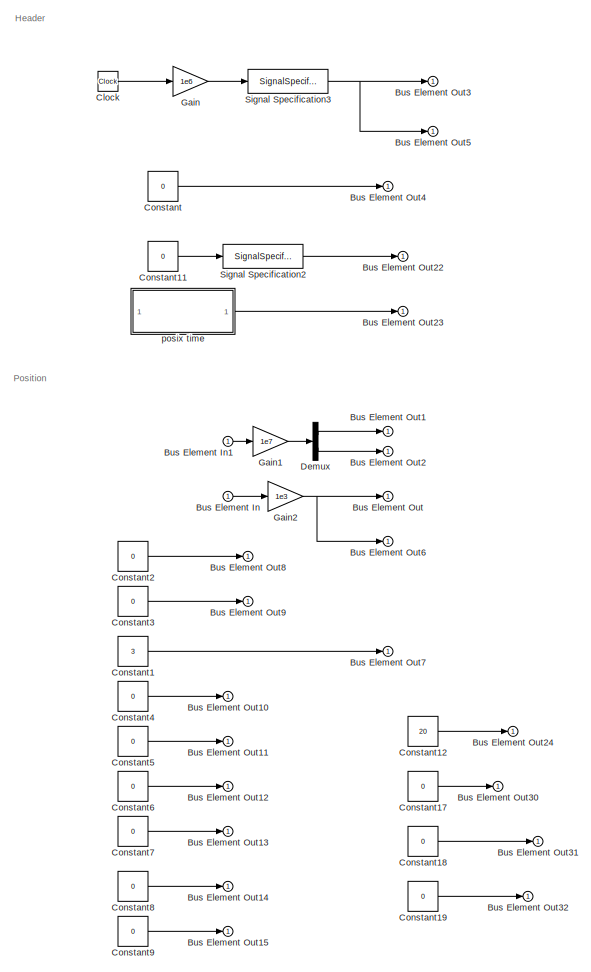
[diagram: measure/gps - part 1/2, left side, full height]
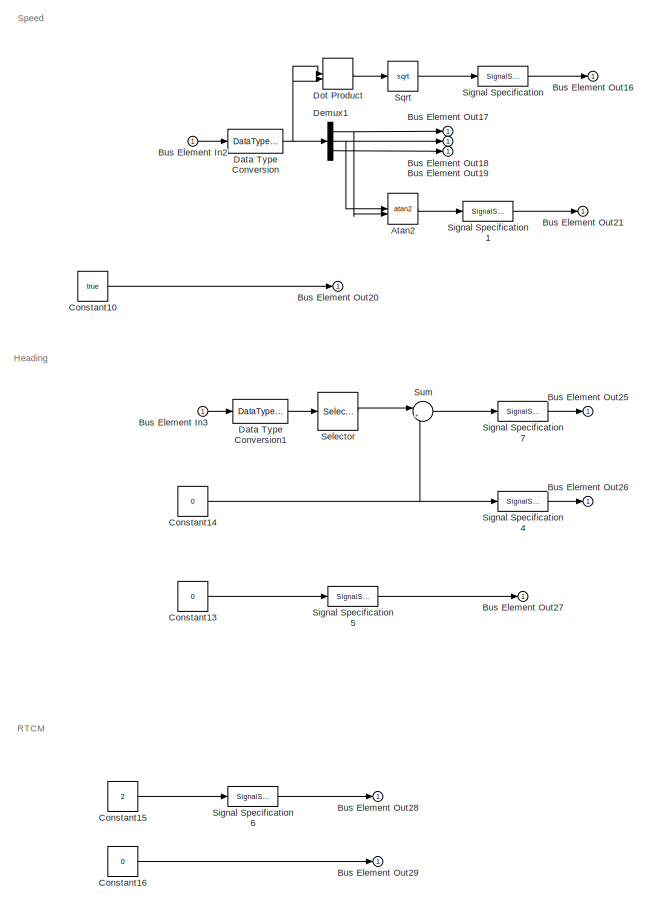
[diagram: measure/gps - part 2/2, right side, full height]
BLOCK [SubSystem] measure/gps
BLOCK [Trigonometry] measure/gps/Atan2
  Operator = atan2
BLOCK [Inport] measure/gps/Bus Element In
BLOCK [Inport] measure/gps/Bus Element In1
BLOCK [Inport] measure/gps/Bus Element In2
BLOCK [Inport] measure/gps/Bus Element In3
BLOCK [Outport] measure/gps/Bus Element Out
BLOCK [Outport] measure/gps/Bus Element Out1
BLOCK [Outport] measure/gps/Bus Element Out10
BLOCK [Outport] measure/gps/Bus Element Out11
BLOCK [Outport] measure/gps/Bus Element Out12
BLOCK [Outport] measure/gps/Bus Element Out13
BLOCK [Outport] measure/gps/Bus Element Out14
BLOCK [Outport] measure/gps/Bus Element Out15
BLOCK [Outport] measure/gps/Bus Element Out16
BLOCK [Outport] measure/gps/Bus Element Out17
BLOCK [Outport] measure/gps/Bus Element Out18
BLOCK [Outport] measure/gps/Bus Element Out19
BLOCK [Outport] measure/gps/Bus Element Out2
BLOCK [Outport] measure/gps/Bus Element Out20
BLOCK [Outport] measure/gps/Bus Element Out21
BLOCK [Outport] measure/gps/Bus Element Out22
BLOCK [Outport] measure/gps/Bus Element Out23
BLOCK [Outport] measure/gps/Bus Element Out24
BLOCK [Outport] measure/gps/Bus Element Out25
BLOCK [Outport] measure/gps/Bus Element Out26
BLOCK [Outport] measure/gps/Bus Element Out27
BLOCK [Outport] measure/gps/Bus Element Out28
BLOCK [Outport] measure/gps/Bus Element Out29
BLOCK [Outport] measure/gps/Bus Element Out3
BLOCK [Outport] measure/gps/Bus Element Out30
BLOCK [Outport] measure/gps/Bus Element Out31
BLOCK [Outport] measure/gps/Bus Element Out32
BLOCK [Outport] measure/gps/Bus Element Out4
BLOCK [Outport] measure/gps/Bus Element Out5
BLOCK [Outport] measure/gps/Bus Element Out6
BLOCK [Outport] measure/gps/Bus Element Out7
BLOCK [Outport] measure/gps/Bus Element Out8
BLOCK [Outport] measure/gps/Bus Element Out9
BLOCK [Clock] measure/gps/Clock
BLOCK [Constant] measure/gps/Constant
  OutDataTypeStr = uint32
  Value = 0
BLOCK [Constant] measure/gps/Constant1
  OutDataTypeStr = uint8
  Value = 3
BLOCK [Constant] measure/gps/Constant10
  OutDataTypeStr = boolean
  Value = true
BLOCK [Constant] measure/gps/Constant11
  OutDataTypeStr = uint32
  Value = 0
BLOCK [Constant] measure/gps/Constant12
  OutDataTypeStr = uint8
  Value = 20
BLOCK [Constant] measure/gps/Constant13
  OutDataTypeStr = single
  Value = 0
BLOCK [Constant] measure/gps/Constant14
  OutDataTypeStr = single
  Value = 0
BLOCK [Constant] measure/gps/Constant15
  OutDataTypeStr = single
  Value = 2
BLOCK [Constant] measure/gps/Constant16
  OutDataTypeStr = uint8
  Value = 0
BLOCK [Constant] measure/gps/Constant17
  OutDataTypeStr = uint8
  Value = 0
BLOCK [Constant] measure/gps/Constant18
  OutDataTypeStr = int32
  Value = 0
BLOCK [Constant] measure/gps/Constant19
  OutDataTypeStr = uint8
  Value = 0
BLOCK [Constant] measure/gps/Constant2
  OutDataTypeStr = single
  Value = 0
BLOCK [Constant] measure/gps/Constant3
  OutDataTypeStr = single
  Value = 0
BLOCK [Constant] measure/gps/Constant4
  OutDataTypeStr = single
  Value = 0
BLOCK [Constant] measure/gps/Constant5
  OutDataTypeStr = single
  Value = 0
BLOCK [Constant] measure/gps/Constant6
  OutDataTypeStr = single
  Value = 0
BLOCK [Constant] measure/gps/Constant7
  OutDataTypeStr = single
  Value = 0
BLOCK [Constant] measure/gps/Constant8
  OutDataTypeStr = int32
  Value = 0
BLOCK [Constant] measure/gps/Constant9
  OutDataTypeStr = uint16
  Value = 0
BLOCK [DataTypeConversion] measure/gps/Data Type Conversion
  OutDataTypeStr = single
  RndMeth = Floor
  SaturateOnIntegerOverflow = off
BLOCK [DataTypeConversion] measure/gps/Data Type Conversion1
  OutDataTypeStr = single
  RndMeth = Floor
  SaturateOnIntegerOverflow = off
BLOCK [Demux] measure/gps/Demux
  Outputs = 2
BLOCK [Demux] measure/gps/Demux1
  Outputs = 3
BLOCK [DotProduct] measure/gps/Dot Product
  OutDataTypeStr = Inherit: Inherit via internal rule
BLOCK [Gain] measure/gps/Gain
  Gain = 1e6
  OutDataTypeStr = uint64
BLOCK [Gain] measure/gps/Gain1
  Gain = 1e7
  OutDataTypeStr = int32
BLOCK [Gain] measure/gps/Gain2
  Gain = 1e3
  OutDataTypeStr = int32
BLOCK [Selector] measure/gps/Selector
  IndexOptions = Index vector (dialog)
  Indices = 3
  InputPortWidth = 3
  OutputSizes = 1
BLOCK [SignalSpecification] measure/gps/Signal Specification
  Unit = m/s
BLOCK [SignalSpecification] measure/gps/Signal Specification1
  Unit = rad
BLOCK [SignalSpecification] measure/gps/Signal Specification2
  Unit = ms
BLOCK [SignalSpecification] measure/gps/Signal Specification3
  Unit = µs
BLOCK [SignalSpecification] measure/gps/Signal Specification4
  Unit = rad
BLOCK [SignalSpecification] measure/gps/Signal Specification5
  Unit = rad
BLOCK [SignalSpecification] measure/gps/Signal Specification6
  Unit = Hz
BLOCK [SignalSpecification] measure/gps/Signal Specification7
  Unit = rad
BLOCK [Sqrt] measure/gps/Sqrt
BLOCK [Sum] measure/gps/Sum
  Inputs = |+-
BLOCK [SubSystem] measure/gps/posix time
BLOCK [Clock] measure/gps/posix time/Clock
BLOCK [Constant] measure/gps/posix time/Constant
  Value = convertTo(datetime('now','TimeZone','UTC'),'posixtime')
BLOCK [Gain] measure/gps/posix time/Gain
  Gain = 1e6
  OutDataTypeStr = uint64
BLOCK [Sum] measure/gps/posix time/Sum
  Inputs = |++
BLOCK [Outport] measure/gps/posix time/utc
  Unit = µs
BLOCK [SubSystem] measure/gyro
BLOCK [Inport] measure/gyro/Bus Element In
BLOCK [Inport] measure/gyro/Bus Element In2
BLOCK [Outport] measure/gyro/Bus Element Out
BLOCK [Outport] measure/gyro/Bus Element Out1
BLOCK [Outport] measure/gyro/Bus Element Out2
BLOCK [Outport] measure/gyro/Bus Element Out3
BLOCK [Outport] measure/gyro/Bus Element Out4
BLOCK [Outport] measure/gyro/Bus Element Out5
BLOCK [Outport] measure/gyro/Bus Element Out6
BLOCK [Outport] measure/gyro/Bus Element Out7
BLOCK [Outport] measure/gyro/Bus Element Out8
BLOCK [Outport] measure/gyro/Bus Element Out9
BLOCK [Clock] measure/gyro/Clock
BLOCK [Constant] measure/gyro/Constant
  OutDataTypeStr = uint32
  Value = 0
BLOCK [Constant] measure/gyro/Constant1
  OutDataTypeStr = uint32
  Value = 0
BLOCK [Constant] measure/gyro/Constant2
  OutDataTypeStr = uint8
  Value = [0 0 0]
BLOCK [Constant] measure/gyro/Constant3
  OutDataTypeStr = uint8
BLOCK [DataTypeConversion] measure/gyro/Data Type Conversion
  OutDataTypeStr = single
  RndMeth = Floor
  SaturateOnIntegerOverflow = off
BLOCK [DataTypeConversion] measure/gyro/Data Type Conversion1
  OutDataTypeStr = single
  RndMeth = Floor
  SaturateOnIntegerOverflow = off
BLOCK [Demux] measure/gyro/Demux
  Outputs = 3
BLOCK [Gain] measure/gyro/Gain
  Gain = 1e6
  OutDataTypeStr = uint64
BLOCK [SignalSpecification] measure/gyro/Signal Specification3
  Unit = µs
BLOCK [Reference] measure/gyro/Temperature Conversion  REF=aerolibconvert2/Temperature Conversion
  SourceBlock = aerolibconvert2/Temperature Conversion
  SourceType = Temperature Conversion
BLOCK [SubSystem] measure/mag
BLOCK [Inport] measure/mag/Bus Element In
BLOCK [Inport] measure/mag/Bus Element In1
BLOCK [Inport] measure/mag/Bus Element In2
BLOCK [Outport] measure/mag/Bus Element Out
BLOCK [Outport] measure/mag/Bus Element Out1
BLOCK [Outport] measure/mag/Bus Element Out2
BLOCK [Outport] measure/mag/Bus Element Out3
BLOCK [Outport] measure/mag/Bus Element Out4
BLOCK [Outport] measure/mag/Bus Element Out5
BLOCK [Outport] measure/mag/Bus Element Out6
BLOCK [Outport] measure/mag/Bus Element Out7
BLOCK [Clock] measure/mag/Clock
BLOCK [Constant] measure/mag/Constant
  OutDataTypeStr = uint32
  Value = 0
BLOCK [Constant] measure/mag/Constant1
  OutDataTypeStr = uint32
  Value = 0
BLOCK [DataTypeConversion] measure/mag/Data Type Conversion
  OutDataTypeStr = single
  RndMeth = Floor
  SaturateOnIntegerOverflow = off
BLOCK [DataTypeConversion] measure/mag/Data Type Conversion1
  OutDataTypeStr = single
  RndMeth = Floor
  SaturateOnIntegerOverflow = off
BLOCK [Demux] measure/mag/Demux
  Outputs = 3
BLOCK [Gain] measure/mag/Gain
  Gain = 1e6
  OutDataTypeStr = uint64
BLOCK [Product] measure/mag/Matrix Multiply
  Multiplication = Matrix(*)
BLOCK [SignalSpecification] measure/mag/Signal Specification1
  Unit = G
BLOCK [SignalSpecification] measure/mag/Signal Specification2
  Unit = nT
BLOCK [SignalSpecification] measure/mag/Signal Specification3
  Unit = µs
BLOCK [Reference] measure/mag/Temperature Conversion  REF=aerolibconvert2/Temperature Conversion
  SourceBlock = aerolibconvert2/Temperature Conversion
  SourceType = Temperature Conversion
BLOCK [UnitConversion] measure/mag/Unit Conversion1
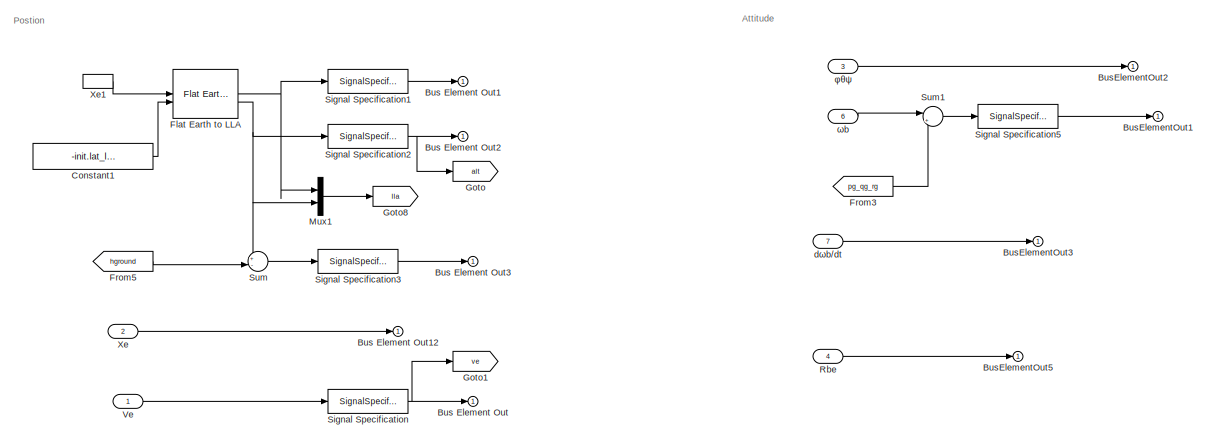
[diagram: state - part 1/3, top left region]
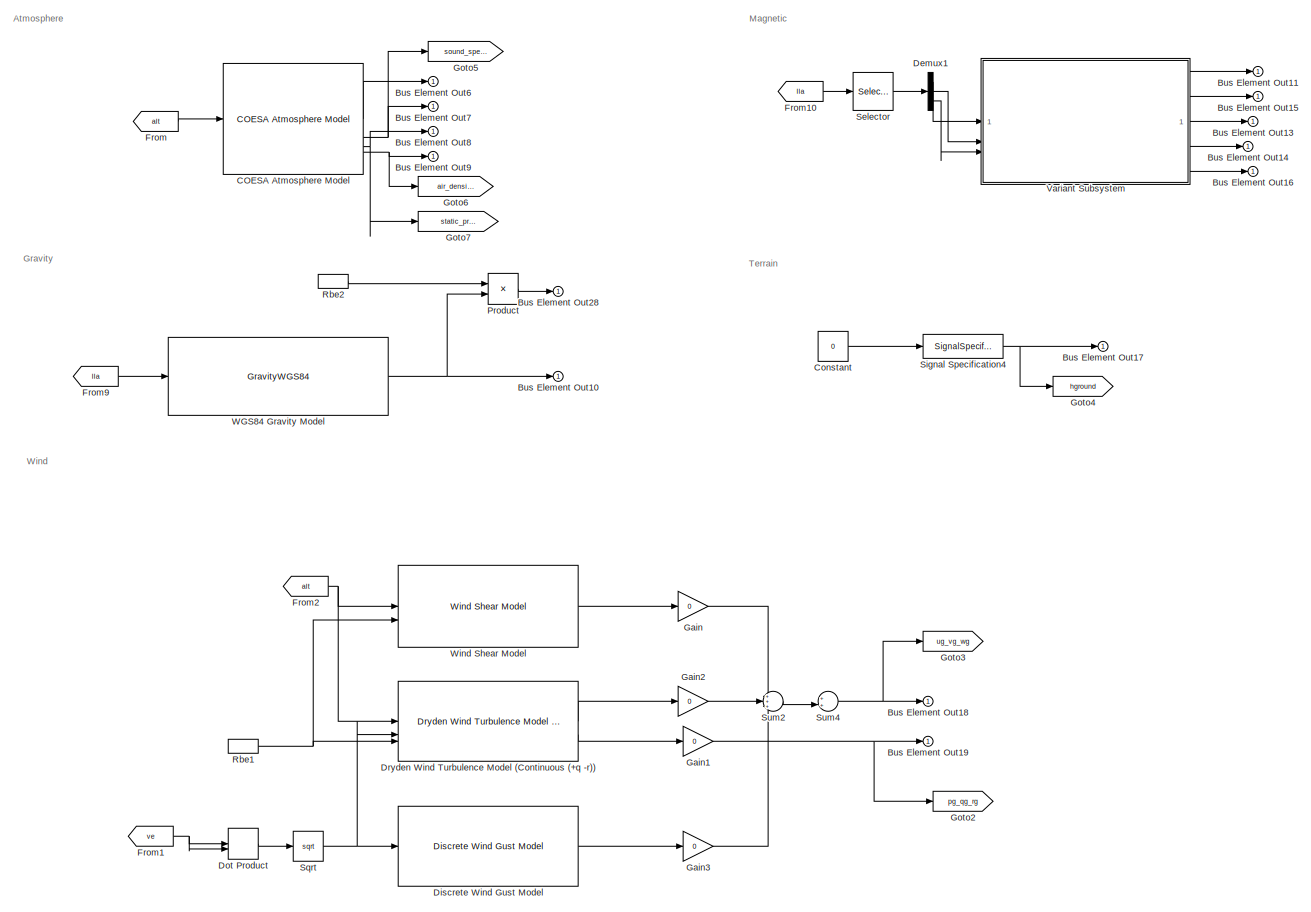
[diagram: state - part 2/3, right side, full height]
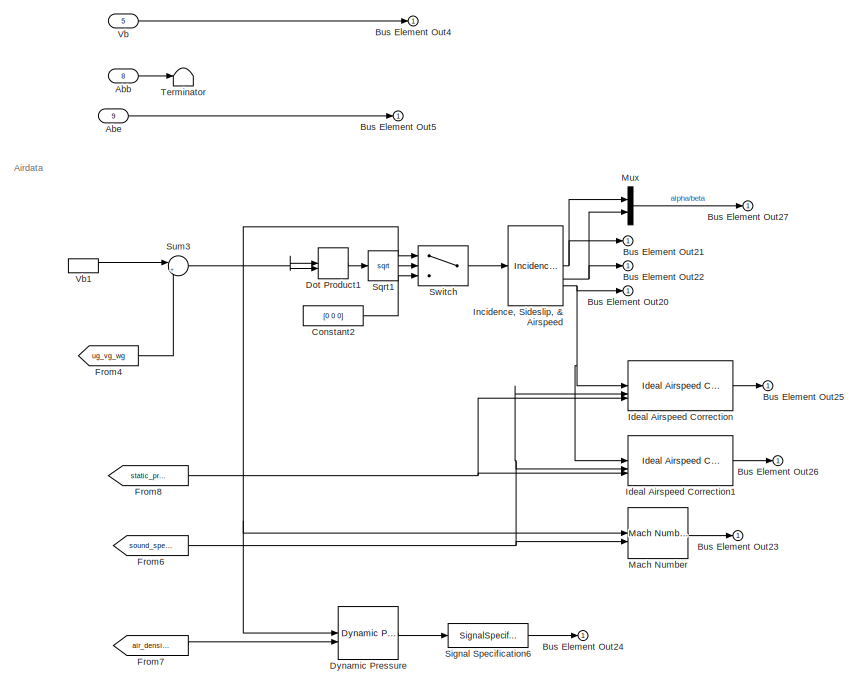
[diagram: state - part 3/3, bottom left region]
BLOCK [SubSystem] state
BLOCK [Inport] state/Abb
  Port = 8
BLOCK [Inport] state/Abe
  Port = 9
BLOCK [Outport] state/Bus Element Out
BLOCK [Outport] state/Bus Element Out1
BLOCK [Outport] state/Bus Element Out10
BLOCK [Outport] state/Bus Element Out11
BLOCK [Outport] state/Bus Element Out12
BLOCK [Outport] state/Bus Element Out13
BLOCK [Outport] state/Bus Element Out14
BLOCK [Outport] state/Bus Element Out15
BLOCK [Outport] state/Bus Element Out16
BLOCK [Outport] state/Bus Element Out17
BLOCK [Outport] state/Bus Element Out18
BLOCK [Outport] state/Bus Element Out19
BLOCK [Outport] state/Bus Element Out2
BLOCK [Outport] state/Bus Element Out20
BLOCK [Outport] state/Bus Element Out21
BLOCK [Outport] state/Bus Element Out22
BLOCK [Outport] state/Bus Element Out23
BLOCK [Outport] state/Bus Element Out24
BLOCK [Outport] state/Bus Element Out25
BLOCK [Outport] state/Bus Element Out26
BLOCK [Outport] state/Bus Element Out27
BLOCK [Outport] state/Bus Element Out28
BLOCK [Outport] state/Bus Element Out3
BLOCK [Outport] state/Bus Element Out4
BLOCK [Outport] state/Bus Element Out5
BLOCK [Outport] state/Bus Element Out6
BLOCK [Outport] state/Bus Element Out7
BLOCK [Outport] state/Bus Element Out8
BLOCK [Outport] state/Bus Element Out9
BLOCK [Outport] state/BusElementOut1
BLOCK [Outport] state/BusElementOut2
BLOCK [Outport] state/BusElementOut3
BLOCK [Outport] state/BusElementOut5
BLOCK [Reference] state/COESA Atmosphere Model  REF=aerolibatmos2/COESA Atmosphere Model
  SourceBlock = aerolibatmos2/COESA Atmosphere Model
  SourceType = Atmosphere Model
BLOCK [Constant] state/Constant
  Value = 0
BLOCK [Constant] state/Constant1
  Value = -init.lat_lon_alt(3)
BLOCK [Constant] state/Constant2
  Value = [0 0 0]
BLOCK [Demux] state/Demux1
  Outputs = 3
BLOCK [Reference] state/Discrete Wind Gust Model  REF=aerolibwind2/Discrete Wind Gust Model
  Commented = on
  SourceBlock = aerolibwind2/Discrete Wind Gust Model
  SourceType = Discrete Wind Gust Model
BLOCK [DotProduct] state/Dot Product
  OutDataTypeStr = Inherit: Inherit via internal rule
BLOCK [DotProduct] state/Dot Product1
  OutDataTypeStr = Inherit: Inherit via internal rule
BLOCK [Reference] state/Dryden Wind Turbulence Model (Continuous (+q -r))  REF=aerolibwind2/Dryden Wind Turbulence Model 
(Continuous (+q -r))
  Commented = on
  SourceBlock = aerolibwind2/Dryden Wind Turbulence Model \n(Continuous (+q -r))
  SourceType = Wind Turbulence Model
BLOCK [Reference] state/Dynamic Pressure  REF=aerolibasang/Dynamic Pressure
  SourceBlock = aerolibasang/Dynamic Pressure
  SourceType = Dynamic Pressure
BLOCK [Reference] state/Flat Earth to LLA  REF=aerolibtransform2/Flat Earth to LLA
  SourceBlock = aerolibtransform2/Flat Earth to LLA
  SourceType = Flat Earth to LLA
BLOCK [From] state/From
  GotoTag = alt
BLOCK [From] state/From1
  GotoTag = ve
BLOCK [From] state/From10
  GotoTag = lla
BLOCK [From] state/From2
  GotoTag = alt
BLOCK [From] state/From3
  GotoTag = pg_qg_rg
BLOCK [From] state/From4
  GotoTag = ug_vg_wg
BLOCK [From] state/From5
  GotoTag = hground
BLOCK [From] state/From6
  GotoTag = sound_speed
BLOCK [From] state/From7
  GotoTag = air_density
BLOCK [From] state/From8
  GotoTag = static_pressure
BLOCK [From] state/From9
  GotoTag = lla
BLOCK [Gain] state/Gain
  Gain = 0
BLOCK [Gain] state/Gain1
  Gain = 0
BLOCK [Gain] state/Gain2
  Gain = 0
BLOCK [Gain] state/Gain3
  Gain = 0
BLOCK [Goto] state/Goto
  GotoTag = alt
BLOCK [Goto] state/Goto1
  GotoTag = ve
BLOCK [Goto] state/Goto2
  GotoTag = pg_qg_rg
BLOCK [Goto] state/Goto3
  GotoTag = ug_vg_wg
BLOCK [Goto] state/Goto4
  GotoTag = hground
BLOCK [Goto] state/Goto5
  GotoTag = sound_speed
BLOCK [Goto] state/Goto6
  GotoTag = air_density
BLOCK [Goto] state/Goto7
  GotoTag = static_pressure
BLOCK [Goto] state/Goto8
  GotoTag = lla
BLOCK [Reference] state/Ideal Airspeed Correction  REF=aerolibasang/Ideal Airspeed Correction
  SourceBlock = aerolibasang/Ideal Airspeed Correction
  SourceType = Ideal Airspeed Correction
BLOCK [Reference] state/Ideal Airspeed Correction1  REF=aerolibasang/Ideal Airspeed Correction
  SourceBlock = aerolibasang/Ideal Airspeed Correction
  SourceType = Ideal Airspeed Correction
BLOCK [Reference] state/Incidence, Sideslip, & Airspeed  REF=aerolibasang/Incidence, Sideslip,
& Airspeed
  SourceBlock = aerolibasang/Incidence, Sideslip,\n& Airspeed
  SourceType = Incidence,Sideslip,&Airspeed
BLOCK [Reference] state/Mach Number  REF=aerolibasang/Mach Number
  SourceBlock = aerolibasang/Mach Number
  SourceType = Mach Number
BLOCK [Mux] state/Mux
  DisplayOption = bar
  Inputs = 2
BLOCK [Mux] state/Mux1
  DisplayOption = bar
  Inputs = 2
BLOCK [Product] state/Product
  Multiplication = Matrix(*)
BLOCK [Inport] state/Rbe
  Port = 4
BLOCK [InportShadow] state/Rbe1
  Port = 4
BLOCK [InportShadow] state/Rbe2
  Port = 4
BLOCK [Selector] state/Selector
  IndexOptions = Index vector (dialog)
  Indices = [3 1 2]
  InputPortWidth = 3
  OutputSizes = 1
BLOCK [SignalSpecification] state/Signal Specification
  Unit = m/s
BLOCK [SignalSpecification] state/Signal Specification1
  Unit = deg
BLOCK [SignalSpecification] state/Signal Specification2
  Unit = m
BLOCK [SignalSpecification] state/Signal Specification3
  Unit = m
BLOCK [SignalSpecification] state/Signal Specification4
  Unit = m
BLOCK [SignalSpecification] state/Signal Specification5
  Unit = rad/s
BLOCK [SignalSpecification] state/Signal Specification6
  Unit = Pa
BLOCK [Sqrt] state/Sqrt
BLOCK [Sqrt] state/Sqrt1
BLOCK [Sum] state/Sum
  Inputs = +-|
BLOCK [Sum] state/Sum1
  Inputs = |++
BLOCK [Sum] state/Sum2
  Inputs = +++
BLOCK [Sum] state/Sum3
  Inputs = |+-
BLOCK [Sum] state/Sum4
  Inputs = ++|
BLOCK [Switch] state/Switch
  Criteria = u2 > Threshold
  InputSameDT = off
  SaturateOnIntegerOverflow = off
  Threshold = 3
BLOCK [Terminator] state/Terminator
BLOCK [SubSystem] state/Variant Subsystem
  Variant = on
BLOCK [Outport] state/Variant Subsystem/D(deg)
  NameLocation = right
  Port = 3
BLOCK [Outport] state/Variant Subsystem/F(nT)
  NameLocation = right
  Port = 5
BLOCK [Outport] state/Variant Subsystem/H(nT)
  NameLocation = right
  Port = 2
BLOCK [Outport] state/Variant Subsystem/I(deg)
  NameLocation = right
  Port = 4
BLOCK [SubSystem] state/Variant Subsystem/None
  VariantControl = true
BLOCK [Constant] state/Variant Subsystem/None/Constant
  Value = [1 0 0]
BLOCK [Constant] state/Variant Subsystem/None/Constant1
  Value = 0
BLOCK [Outport] state/Variant Subsystem/None/D(deg)
  NameLocation = right
  Port = 3
BLOCK [Outport] state/Variant Subsystem/None/F(nT)
  NameLocation = right
  Port = 5
BLOCK [Outport] state/Variant Subsystem/None/H(nT)
  NameLocation = right
  Port = 2
BLOCK [Outport] state/Variant Subsystem/None/I(deg)
  NameLocation = right
  Port = 4
BLOCK [Terminator] state/Variant Subsystem/None/Terminator
BLOCK [Terminator] state/Variant Subsystem/None/Terminator1
BLOCK [Terminator] state/Variant Subsystem/None/Terminator2
BLOCK [Outport] state/Variant Subsystem/None/XYZ(nT)
  NameLocation = right
BLOCK [Inport] state/Variant Subsystem/None/h(m)
  NameLocation = left
BLOCK [Inport] state/Variant Subsystem/None/l(deg)
  NameLocation = left
  Port = 3
BLOCK [Inport] state/Variant Subsystem/None/μ(deg)
  NameLocation = left
  Port = 2
BLOCK [SubSystem] state/Variant Subsystem/WMM2020
  VariantControl = false
BLOCK [Outport] state/Variant Subsystem/WMM2020/D(deg)
  NameLocation = right
  Port = 3
BLOCK [Outport] state/Variant Subsystem/WMM2020/F(nT)
  NameLocation = right
  Port = 5
BLOCK [Outport] state/Variant Subsystem/WMM2020/H(nT)
  NameLocation = right
  Port = 2
BLOCK [Outport] state/Variant Subsystem/WMM2020/I(deg)
  NameLocation = right
  Port = 4
BLOCK [Reference] state/Variant Subsystem/WMM2020/World Magnetic Model  REF=aerolibgravity2/World Magnetic Model
  AttributesFormatString = %<model>
  SourceBlock = aerolibgravity2/World Magnetic Model
  SourceType = WorldMagneticModel
BLOCK [Outport] state/Variant Subsystem/WMM2020/XYZ(nT)
  NameLocation = right
BLOCK [Inport] state/Variant Subsystem/WMM2020/h(m)
  NameLocation = left
BLOCK [Inport] state/Variant Subsystem/WMM2020/l(deg)
  NameLocation = left
  Port = 3
BLOCK [Inport] state/Variant Subsystem/WMM2020/μ(deg)
  NameLocation = left
  Port = 2
BLOCK [Outport] state/Variant Subsystem/XYZ(nT)
  NameLocation = right
BLOCK [Inport] state/Variant Subsystem/h(m)
  NameLocation = left
BLOCK [Inport] state/Variant Subsystem/l(deg)
  NameLocation = left
  Port = 3
BLOCK [Inport] state/Variant Subsystem/μ(deg)
  NameLocation = left
  Port = 2
BLOCK [Inport] state/Vb
  Port = 5
BLOCK [InportShadow] state/Vb1
  Port = 5
BLOCK [Inport] state/Ve
BLOCK [GravityWGS84] state/WGS84 Gravity Model  
BLOCK [Reference] state/Wind Shear Model  REF=aerolibwind2/Wind Shear Model
  Commented = on
  SourceBlock = aerolibwind2/Wind Shear Model
  SourceType = Wind Shear Model
BLOCK [Inport] state/Xe
  Port = 2
BLOCK [InportShadow] state/Xe1
  Port = 2
BLOCK [Inport] state/dωb//dt
  Port = 7
BLOCK [Inport] state/φθψ
  Port = 3
BLOCK [Inport] state/ωb
  Port = 6
ANNOTATION dynamic/engine: 推力、扭矩、转速、缸温、功率、耗油率
ANNOTATION dynamic/fixed wing/actuator: [-1,1]
ANNOTATION dynamic/fixed wing/actuator: pwm=1000~2000
ANNOTATION dynamic/fixed wing/actuator/Variant Subsystem: 1) Add Subsystem or Model blocks as valid variant choices. 2) You cannot connect blocks at this level. At simulation, connectivity is automatically determined, based on the active variant and port name matching.
ANNOTATION dynamic/fixed wing/aerodynamics: 气动力参考点
ANNOTATION dynamic/landgear: ASL：above sea level AGL：above groud level
ANNOTATION dynamic/rotor copter: 转速，拉力，扭矩，功率
ANNOTATION measure/gps: Header
ANNOTATION measure/gps: Heading
ANNOTATION measure/gps: Position
ANNOTATION measure/gps: RTCM
ANNOTATION measure/gps: Speed
ANNOTATION state: Airdata
ANNOTATION state: Atmosphere
ANNOTATION state: Attitude
ANNOTATION state: Gravity
ANNOTATION state: Magnetic
ANNOTATION state: Postion
ANNOTATION state: Terrain
ANNOTATION state: Wind
ANNOTATION state/Variant Subsystem: 1) Add Subsystem or Model blocks as valid variant choices. 2) You cannot connect blocks at this level. At simulation, connectivity is automatically determined, based on the active variant and port name matching.
LINE 6DOF (Quaternion):1 -> state:1
LINE 6DOF (Quaternion):2 -> state:2
LINE 6DOF (Quaternion):3 -> state:3
LINE 6DOF (Quaternion):4 -> state:4
LINE 6DOF (Quaternion):5 -> state:5
LINE 6DOF (Quaternion):6 -> state:6
LINE 6DOF (Quaternion):7 -> state:7
LINE 6DOF (Quaternion):8 -> state:8
LINE 6DOF (Quaternion):9 -> state:9
LINE actuators:1 -> dynamic:1
LINE dynamic/Bus Element In1:1 -> dynamic/Subsystem:1
NET dynamic/Bus Element In:1 -> dynamic/engine:2, dynamic/fixed wing:2, dynamic/landgear:2, dynamic/rotor copter:2
LINE dynamic/Subsystem/Demux:1 -> dynamic/Subsystem/Bus Element Out1:1
LINE dynamic/Subsystem/Demux:10 -> dynamic/Subsystem/Bus Element Out10:1
LINE dynamic/Subsystem/Demux:11 -> dynamic/Subsystem/Bus Element Out11:1
LINE dynamic/Subsystem/Demux:12 -> dynamic/Subsystem/Bus Element Out12:1
LINE dynamic/Subsystem/Demux:13 -> dynamic/Subsystem/Bus Element Out13:1
LINE dynamic/Subsystem/Demux:14 -> dynamic/Subsystem/Bus Element Out14:1
LINE dynamic/Subsystem/Demux:15 -> dynamic/Subsystem/Bus Element Out15:1
LINE dynamic/Subsystem/Demux:16 -> dynamic/Subsystem/Bus Element Out16:1
LINE dynamic/Subsystem/Demux:2 -> dynamic/Subsystem/Bus Element Out2:1
LINE dynamic/Subsystem/Demux:3 -> dynamic/Subsystem/Bus Element Out3:1
LINE dynamic/Subsystem/Demux:4 -> dynamic/Subsystem/Bus Element Out4:1
LINE dynamic/Subsystem/Demux:5 -> dynamic/Subsystem/Bus Element Out5:1
LINE dynamic/Subsystem/Demux:6 -> dynamic/Subsystem/Bus Element Out6:1
LINE dynamic/Subsystem/Demux:7 -> dynamic/Subsystem/Bus Element Out7:1
LINE dynamic/Subsystem/Demux:8 -> dynamic/Subsystem/Bus Element Out8:1
LINE dynamic/Subsystem/Demux:9 -> dynamic/Subsystem/Bus Element Out9:1
LINE dynamic/Subsystem/actuator:1 -> dynamic/Subsystem/Demux:1
NET dynamic/Subsystem:1 -> dynamic/engine:1, dynamic/fixed wing:1, dynamic/landgear:1, dynamic/rotor copter:1
LINE dynamic/battery/Constant1:1 -> dynamic/battery/Bus Element Out:1
LINE dynamic/battery/Constant:1 -> dynamic/battery/Bus Element Out1:1
LINE dynamic/battery:1 -> dynamic/Bus Element Out4:1
NET dynamic/engine/1-D Lookup Table1:1 -> dynamic/engine/Bus Element Out9:1, dynamic/engine/Subsystem1:6
NET dynamic/engine/1-D Lookup Table3:1 -> dynamic/engine/Bus Element Out5:1, dynamic/engine/Product3:1
NET dynamic/engine/1-D Lookup Table:1 -> dynamic/engine/Bus Element Out4:1, dynamic/engine/Gain1:1
LINE dynamic/engine/BusElementIn1:1 -> dynamic/engine/Subsystem1:2
LINE dynamic/engine/BusElementIn2:1 -> dynamic/engine/Subsystem1:3
LINE dynamic/engine/BusElementIn4:1 -> dynamic/engine/Subsystem1:4
LINE dynamic/engine/BusElementIn5:1 -> dynamic/engine/Subsystem:1
LINE dynamic/engine/BusElementIn:1 -> dynamic/engine/Saturation:1
LINE dynamic/engine/Constant1:1 -> dynamic/engine/Rotation Angles to Direction Cosine Matrix:1
LINE dynamic/engine/Constant2:1 -> dynamic/engine/Bus Element Out10:1
LINE dynamic/engine/Constant3:1 -> dynamic/engine/Sum1:2
LINE dynamic/engine/Constant4:1 -> dynamic/engine/Bus Element Out11:1
LINE dynamic/engine/Constant5:1 -> dynamic/engine/Bus Element Out8:1
LINE dynamic/engine/Constant:1 -> dynamic/engine/Sum:1
LINE dynamic/engine/Gain1:1 -> dynamic/engine/Bus Element Out2:1
LINE dynamic/engine/Gain2:1 -> dynamic/engine/Product:2
LINE dynamic/engine/Gain3:1 -> dynamic/engine/Sum:2
NET dynamic/engine/Gain:1 -> dynamic/engine/1-D Lookup Table1:1, dynamic/engine/1-D Lookup Table3:1, dynamic/engine/1-D Lookup Table:1, dynamic/engine/Subsystem1:5, dynamic/engine/Subsystem:2
LINE dynamic/engine/Integrator:1 -> dynamic/engine/Gain3:1
LINE dynamic/engine/Product3:1 -> dynamic/engine/Integrator:1
LINE dynamic/engine/Product:1 -> dynamic/engine/Bus Element Out1:1
LINE dynamic/engine/Rotation Angles to Direction Cosine Matrix:1 -> dynamic/engine/Transpose:1
LINE dynamic/engine/Saturation:1 -> dynamic/engine/Sum1:1
LINE dynamic/engine/Subsystem/1-D Lookup Table2:1 -> dynamic/engine/Subsystem/Power_alt:2
LINE dynamic/engine/Subsystem/Power_alt:1 -> dynamic/engine/Subsystem/power:1
LINE dynamic/engine/Subsystem/rho:1 -> dynamic/engine/Subsystem/Power_alt:1
LINE dynamic/engine/Subsystem/throttle:1 -> dynamic/engine/Subsystem/1-D Lookup Table2:1
LINE dynamic/engine/Subsystem1/1-D Lookup Table1:1 -> dynamic/engine/Subsystem1/Dynamic_thrust:3
LINE dynamic/engine/Subsystem1/Constant2:1 -> dynamic/engine/Subsystem1/Dynamic_thrust:7
LINE dynamic/engine/Subsystem1/Dynamic_thrust:1 -> dynamic/engine/Subsystem1/dynamic_thrust:1
LINE dynamic/engine/Subsystem1/alt:1 -> dynamic/engine/Subsystem1/Dynamic_thrust:4
LINE dynamic/engine/Subsystem1/power:1 -> dynamic/engine/Subsystem1/Dynamic_thrust:2
LINE dynamic/engine/Subsystem1/rho:1 -> dynamic/engine/Subsystem1/Dynamic_thrust:6
LINE dynamic/engine/Subsystem1/rpm:1 -> dynamic/engine/Subsystem1/Dynamic_thrust:1
LINE dynamic/engine/Subsystem1/throttle:1 -> dynamic/engine/Subsystem1/1-D Lookup Table1:1
LINE dynamic/engine/Subsystem1/va:1 -> dynamic/engine/Subsystem1/Dynamic_thrust:5
NET dynamic/engine/Subsystem1:1 -> dynamic/engine/Bus Element Out3:1, dynamic/engine/Gain2:1
NET dynamic/engine/Subsystem:1 -> dynamic/engine/Bus Element Out6:1, dynamic/engine/Product3:2, dynamic/engine/Subsystem1:1
LINE dynamic/engine/Sum1:1 -> dynamic/engine/Gain:1
LINE dynamic/engine/Sum:1 -> dynamic/engine/Bus Element Out7:1
LINE dynamic/engine/Transpose:1 -> dynamic/engine/Product:1
LINE dynamic/engine:1 -> dynamic/Bus Element Out2:1
LINE dynamic/fixed wing/Bus Element In1:1 -> dynamic/fixed wing/aerodynamics:2
LINE dynamic/fixed wing/BusElementIn4:1 -> dynamic/fixed wing/actuator:1
LINE dynamic/fixed wing/actuator/BusElementIn1:1 -> dynamic/fixed wing/actuator/Mux:2
LINE dynamic/fixed wing/actuator/BusElementIn2:1 -> dynamic/fixed wing/actuator/Mux:3
LINE dynamic/fixed wing/actuator/BusElementIn3:1 -> dynamic/fixed wing/actuator/Mux:4
LINE dynamic/fixed wing/actuator/BusElementIn:1 -> dynamic/fixed wing/actuator/Mux:1
LINE dynamic/fixed wing/actuator/Constant:1 -> dynamic/fixed wing/actuator/Sum:2
LINE dynamic/fixed wing/actuator/Demux:1 -> dynamic/fixed wing/actuator/Bus Element Out:1
LINE dynamic/fixed wing/actuator/Demux:2 -> dynamic/fixed wing/actuator/Bus Element Out1:1
LINE dynamic/fixed wing/actuator/Demux:3 -> dynamic/fixed wing/actuator/Bus Element Out2:1
LINE dynamic/fixed wing/actuator/Demux:4 -> dynamic/fixed wing/actuator/Bus Element Out3:1
LINE dynamic/fixed wing/actuator/Gain:1 -> dynamic/fixed wing/actuator/Saturation:1
LINE dynamic/fixed wing/actuator/Mux:1 -> dynamic/fixed wing/actuator/Saturation1:1
LINE dynamic/fixed wing/actuator/Saturation1:1 -> dynamic/fixed wing/actuator/Sum:1
LINE dynamic/fixed wing/actuator/Saturation:1 -> dynamic/fixed wing/actuator/Signal Specification4:1
LINE dynamic/fixed wing/actuator/Signal Specification4:1 -> dynamic/fixed wing/actuator/Variant Subsystem:1
LINE dynamic/fixed wing/actuator/Sum:1 -> dynamic/fixed wing/actuator/Gain:1
LINE dynamic/fixed wing/actuator/Variant Subsystem/Direct Through/In1:1 -> dynamic/fixed wing/actuator/Variant Subsystem/Direct Through/Out1:1
LINE dynamic/fixed wing/actuator/Variant Subsystem/Linear/In1:1 -> dynamic/fixed wing/actuator/Variant Subsystem/Linear/Linear Second-Order Actuator:1
LINE dynamic/fixed wing/actuator/Variant Subsystem/Linear/Linear Second-Order Actuator:1 -> dynamic/fixed wing/actuator/Variant Subsystem/Linear/Out1:1
LINE dynamic/fixed wing/actuator/Variant Subsystem:1 -> dynamic/fixed wing/actuator/Demux:1
LINE dynamic/fixed wing/actuator:1 -> dynamic/fixed wing/aerodynamics:1
LINE dynamic/fixed wing/aerodynamics/BusElementIn10:1 -> dynamic/fixed wing/aerodynamics/right rudder:3
LINE dynamic/fixed wing/aerodynamics/BusElementIn1:1 -> dynamic/fixed wing/aerodynamics/Product:3
LINE dynamic/fixed wing/aerodynamics/BusElementIn2:1 -> dynamic/fixed wing/aerodynamics/Product1:2
NET dynamic/fixed wing/aerodynamics/BusElementIn3:1 -> dynamic/fixed wing/aerodynamics/Product1:3, dynamic/fixed wing/aerodynamics/Product1:4
LINE dynamic/fixed wing/aerodynamics/BusElementIn5:1 -> dynamic/fixed wing/aerodynamics/Unit Conversion:1
LINE dynamic/fixed wing/aerodynamics/BusElementIn6:1 -> dynamic/fixed wing/aerodynamics/Unit Conversion1:1
LINE dynamic/fixed wing/aerodynamics/BusElementIn7:1 -> dynamic/fixed wing/aerodynamics/left aileron:3
LINE dynamic/fixed wing/aerodynamics/BusElementIn8:1 -> dynamic/fixed wing/aerodynamics/right aileron:3
LINE dynamic/fixed wing/aerodynamics/BusElementIn9:1 -> dynamic/fixed wing/aerodynamics/left rudder:3
NET dynamic/fixed wing/aerodynamics/BusElementIn:1 -> dynamic/fixed wing/aerodynamics/Product:1, dynamic/fixed wing/aerodynamics/Product:2
LINE dynamic/fixed wing/aerodynamics/Constant:1 -> dynamic/fixed wing/aerodynamics/Bus Element Out3:1
LINE dynamic/fixed wing/aerodynamics/Gain1:1 -> dynamic/fixed wing/aerodynamics/Bus Element Out1:1
LINE dynamic/fixed wing/aerodynamics/Gain:1 -> dynamic/fixed wing/aerodynamics/Bus Element Out:1
LINE dynamic/fixed wing/aerodynamics/Product1:1 -> dynamic/fixed wing/aerodynamics/Gain1:1
LINE dynamic/fixed wing/aerodynamics/Product:1 -> dynamic/fixed wing/aerodynamics/Gain:1
LINE dynamic/fixed wing/aerodynamics/Sum1:1 -> dynamic/fixed wing/aerodynamics/Product1:1
LINE dynamic/fixed wing/aerodynamics/Sum:1 -> dynamic/fixed wing/aerodynamics/Product:4
NET dynamic/fixed wing/aerodynamics/Unit Conversion1:1 -> dynamic/fixed wing/aerodynamics/basic:2, dynamic/fixed wing/aerodynamics/landgear:2, dynamic/fixed wing/aerodynamics/left aileron:2, dynamic/fixed wing/aerodynamics/left rudder:2, dynamic/fixed wing/aerodynamics/right aileron:2, dynamic/fixed wing/aerodynamics/right rudder:2
NET dynamic/fixed wing/aerodynamics/Unit Conversion:1 -> dynamic/fixed wing/aerodynamics/basic:1, dynamic/fixed wing/aerodynamics/landgear:1, dynamic/fixed wing/aerodynamics/left aileron:1, dynamic/fixed wing/aerodynamics/left rudder:1, dynamic/fixed wing/aerodynamics/right aileron:1, dynamic/fixed wing/aerodynamics/right rudder:1
LINE dynamic/fixed wing/aerodynamics/basic/2-D Lookup Table1:1 -> dynamic/fixed wing/aerodynamics/basic/Mux:2
LINE dynamic/fixed wing/aerodynamics/basic/2-D Lookup Table2:1 -> dynamic/fixed wing/aerodynamics/basic/Mux:3
LINE dynamic/fixed wing/aerodynamics/basic/2-D Lookup Table3:1 -> dynamic/fixed wing/aerodynamics/basic/Mux1:1
LINE dynamic/fixed wing/aerodynamics/basic/2-D Lookup Table4:1 -> dynamic/fixed wing/aerodynamics/basic/Mux1:2
LINE dynamic/fixed wing/aerodynamics/basic/2-D Lookup Table5:1 -> dynamic/fixed wing/aerodynamics/basic/Mux1:3
LINE dynamic/fixed wing/aerodynamics/basic/2-D Lookup Table:1 -> dynamic/fixed wing/aerodynamics/basic/Mux:1
LINE dynamic/fixed wing/aerodynamics/basic/Mux1:1 -> dynamic/fixed wing/aerodynamics/basic/clcmcn:1
LINE dynamic/fixed wing/aerodynamics/basic/Mux:1 -> dynamic/fixed wing/aerodynamics/basic/cxcycz:1
NET dynamic/fixed wing/aerodynamics/basic/alpha:1 -> dynamic/fixed wing/aerodynamics/basic/2-D Lookup Table1:1, dynamic/fixed wing/aerodynamics/basic/2-D Lookup Table2:1, dynamic/fixed wing/aerodynamics/basic/2-D Lookup Table3:1, dynamic/fixed wing/aerodynamics/basic/2-D Lookup Table4:1, dynamic/fixed wing/aerodynamics/basic/2-D Lookup Table5:1, dynamic/fixed wing/aerodynamics/basic/2-D Lookup Table:1
NET dynamic/fixed wing/aerodynamics/basic/beta:1 -> dynamic/fixed wing/aerodynamics/basic/2-D Lookup Table1:2, dynamic/fixed wing/aerodynamics/basic/2-D Lookup Table2:2, dynamic/fixed wing/aerodynamics/basic/2-D Lookup Table3:2, dynamic/fixed wing/aerodynamics/basic/2-D Lookup Table4:2, dynamic/fixed wing/aerodynamics/basic/2-D Lookup Table5:2, dynamic/fixed wing/aerodynamics/basic/2-D Lookup Table:2
LINE dynamic/fixed wing/aerodynamics/basic:1 -> dynamic/fixed wing/aerodynamics/Sum:1
LINE dynamic/fixed wing/aerodynamics/basic:2 -> dynamic/fixed wing/aerodynamics/Sum1:1
LINE dynamic/fixed wing/aerodynamics/landgear/2-D Lookup Table1:1 -> dynamic/fixed wing/aerodynamics/landgear/Mux:2
LINE dynamic/fixed wing/aerodynamics/landgear/2-D Lookup Table2:1 -> dynamic/fixed wing/aerodynamics/landgear/Mux:3
LINE dynamic/fixed wing/aerodynamics/landgear/2-D Lookup Table3:1 -> dynamic/fixed wing/aerodynamics/landgear/Mux1:1
LINE dynamic/fixed wing/aerodynamics/landgear/2-D Lookup Table4:1 -> dynamic/fixed wing/aerodynamics/landgear/Mux1:2
LINE dynamic/fixed wing/aerodynamics/landgear/2-D Lookup Table5:1 -> dynamic/fixed wing/aerodynamics/landgear/Mux1:3
LINE dynamic/fixed wing/aerodynamics/landgear/2-D Lookup Table:1 -> dynamic/fixed wing/aerodynamics/landgear/Mux:1
LINE dynamic/fixed wing/aerodynamics/landgear/Mux1:1 -> dynamic/fixed wing/aerodynamics/landgear/clcmcn:1
LINE dynamic/fixed wing/aerodynamics/landgear/Mux:1 -> dynamic/fixed wing/aerodynamics/landgear/cxcycz:1
NET dynamic/fixed wing/aerodynamics/landgear/alpha:1 -> dynamic/fixed wing/aerodynamics/landgear/2-D Lookup Table1:1, dynamic/fixed wing/aerodynamics/landgear/2-D Lookup Table2:1, dynamic/fixed wing/aerodynamics/landgear/2-D Lookup Table3:1, dynamic/fixed wing/aerodynamics/landgear/2-D Lookup Table4:1, dynamic/fixed wing/aerodynamics/landgear/2-D Lookup Table5:1, dynamic/fixed wing/aerodynamics/landgear/2-D Lookup Table:1
NET dynamic/fixed wing/aerodynamics/landgear/beta:1 -> dynamic/fixed wing/aerodynamics/landgear/2-D Lookup Table1:2, dynamic/fixed wing/aerodynamics/landgear/2-D Lookup Table2:2, dynamic/fixed wing/aerodynamics/landgear/2-D Lookup Table3:2, dynamic/fixed wing/aerodynamics/landgear/2-D Lookup Table4:2, dynamic/fixed wing/aerodynamics/landgear/2-D Lookup Table5:2, dynamic/fixed wing/aerodynamics/landgear/2-D Lookup Table:2
LINE dynamic/fixed wing/aerodynamics/landgear:1 -> dynamic/fixed wing/aerodynamics/Sum:2
LINE dynamic/fixed wing/aerodynamics/landgear:2 -> dynamic/fixed wing/aerodynamics/Sum1:2
LINE dynamic/fixed wing/aerodynamics/left aileron/2-D Lookup Table1:1 -> dynamic/fixed wing/aerodynamics/left aileron/Mux:3
LINE dynamic/fixed wing/aerodynamics/left aileron/2-D Lookup Table2:1 -> dynamic/fixed wing/aerodynamics/left aileron/Mux1:1
LINE dynamic/fixed wing/aerodynamics/left aileron/2-D Lookup Table3:1 -> dynamic/fixed wing/aerodynamics/left aileron/Mux1:2
LINE dynamic/fixed wing/aerodynamics/left aileron/2-D Lookup Table4:1 -> dynamic/fixed wing/aerodynamics/left aileron/Mux1:3
LINE dynamic/fixed wing/aerodynamics/left aileron/2-D Lookup Table6:1 -> dynamic/fixed wing/aerodynamics/left aileron/Mux:2
LINE dynamic/fixed wing/aerodynamics/left aileron/2-D Lookup Table:1 -> dynamic/fixed wing/aerodynamics/left aileron/Mux:1
LINE dynamic/fixed wing/aerodynamics/left aileron/Mux1:1 -> dynamic/fixed wing/aerodynamics/left aileron/clcmcn:1
LINE dynamic/fixed wing/aerodynamics/left aileron/Mux:1 -> dynamic/fixed wing/aerodynamics/left aileron/cxcycz:1
NET dynamic/fixed wing/aerodynamics/left aileron/alpha:1 -> dynamic/fixed wing/aerodynamics/left aileron/2-D Lookup Table1:1, dynamic/fixed wing/aerodynamics/left aileron/2-D Lookup Table2:1, dynamic/fixed wing/aerodynamics/left aileron/2-D Lookup Table3:1, dynamic/fixed wing/aerodynamics/left aileron/2-D Lookup Table4:1, dynamic/fixed wing/aerodynamics/left aileron/2-D Lookup Table6:1, dynamic/fixed wing/aerodynamics/left aileron/2-D Lookup Table:1
NET dynamic/fixed wing/aerodynamics/left aileron/beta:1 -> dynamic/fixed wing/aerodynamics/left aileron/2-D Lookup Table1:2, dynamic/fixed wing/aerodynamics/left aileron/2-D Lookup Table2:2, dynamic/fixed wing/aerodynamics/left aileron/2-D Lookup Table3:2, dynamic/fixed wing/aerodynamics/left aileron/2-D Lookup Table4:2, dynamic/fixed wing/aerodynamics/left aileron/2-D Lookup Table6:2, dynamic/fixed wing/aerodynamics/left aileron/2-D Lookup Table:2
NET dynamic/fixed wing/aerodynamics/left aileron/dla:1 -> dynamic/fixed wing/aerodynamics/left aileron/2-D Lookup Table1:3, dynamic/fixed wing/aerodynamics/left aileron/2-D Lookup Table2:3, dynamic/fixed wing/aerodynamics/left aileron/2-D Lookup Table3:3, dynamic/fixed wing/aerodynamics/left aileron/2-D Lookup Table4:3, dynamic/fixed wing/aerodynamics/left aileron/2-D Lookup Table6:3, dynamic/fixed wing/aerodynamics/left aileron/2-D Lookup Table:3
LINE dynamic/fixed wing/aerodynamics/left aileron:1 -> dynamic/fixed wing/aerodynamics/Sum:3
LINE dynamic/fixed wing/aerodynamics/left aileron:2 -> dynamic/fixed wing/aerodynamics/Sum1:3
LINE dynamic/fixed wing/aerodynamics/left rudder/2-D Lookup Table1:1 -> dynamic/fixed wing/aerodynamics/left rudder/Mux:2
LINE dynamic/fixed wing/aerodynamics/left rudder/2-D Lookup Table2:1 -> dynamic/fixed wing/aerodynamics/left rudder/Mux:3
LINE dynamic/fixed wing/aerodynamics/left rudder/2-D Lookup Table3:1 -> dynamic/fixed wing/aerodynamics/left rudder/Mux1:1
LINE dynamic/fixed wing/aerodynamics/left rudder/2-D Lookup Table4:1 -> dynamic/fixed wing/aerodynamics/left rudder/Mux1:2
LINE dynamic/fixed wing/aerodynamics/left rudder/2-D Lookup Table5:1 -> dynamic/fixed wing/aerodynamics/left rudder/Mux1:3
LINE dynamic/fixed wing/aerodynamics/left rudder/2-D Lookup Table:1 -> dynamic/fixed wing/aerodynamics/left rudder/Mux:1
LINE dynamic/fixed wing/aerodynamics/left rudder/Mux1:1 -> dynamic/fixed wing/aerodynamics/left rudder/clcmcn:1
LINE dynamic/fixed wing/aerodynamics/left rudder/Mux:1 -> dynamic/fixed wing/aerodynamics/left rudder/cxcycz:1
NET dynamic/fixed wing/aerodynamics/left rudder/alpha:1 -> dynamic/fixed wing/aerodynamics/left rudder/2-D Lookup Table1:1, dynamic/fixed wing/aerodynamics/left rudder/2-D Lookup Table2:1, dynamic/fixed wing/aerodynamics/left rudder/2-D Lookup Table3:1, dynamic/fixed wing/aerodynamics/left rudder/2-D Lookup Table4:1, dynamic/fixed wing/aerodynamics/left rudder/2-D Lookup Table5:1, dynamic/fixed wing/aerodynamics/left rudder/2-D Lookup Table:1
NET dynamic/fixed wing/aerodynamics/left rudder/beta:1 -> dynamic/fixed wing/aerodynamics/left rudder/2-D Lookup Table1:2, dynamic/fixed wing/aerodynamics/left rudder/2-D Lookup Table2:2, dynamic/fixed wing/aerodynamics/left rudder/2-D Lookup Table3:2, dynamic/fixed wing/aerodynamics/left rudder/2-D Lookup Table4:2, dynamic/fixed wing/aerodynamics/left rudder/2-D Lookup Table5:2, dynamic/fixed wing/aerodynamics/left rudder/2-D Lookup Table:2
NET dynamic/fixed wing/aerodynamics/left rudder/dlr:1 -> dynamic/fixed wing/aerodynamics/left rudder/2-D Lookup Table1:3, dynamic/fixed wing/aerodynamics/left rudder/2-D Lookup Table2:3, dynamic/fixed wing/aerodynamics/left rudder/2-D Lookup Table3:3, dynamic/fixed wing/aerodynamics/left rudder/2-D Lookup Table4:3, dynamic/fixed wing/aerodynamics/left rudder/2-D Lookup Table5:3, dynamic/fixed wing/aerodynamics/left rudder/2-D Lookup Table:3
LINE dynamic/fixed wing/aerodynamics/left rudder:1 -> dynamic/fixed wing/aerodynamics/Sum:5
LINE dynamic/fixed wing/aerodynamics/left rudder:2 -> dynamic/fixed wing/aerodynamics/Sum1:5
LINE dynamic/fixed wing/aerodynamics/right aileron/2-D Lookup Table1:1 -> dynamic/fixed wing/aerodynamics/right aileron/Mux:2
LINE dynamic/fixed wing/aerodynamics/right aileron/2-D Lookup Table2:1 -> dynamic/fixed wing/aerodynamics/right aileron/Mux:3
LINE dynamic/fixed wing/aerodynamics/right aileron/2-D Lookup Table3:1 -> dynamic/fixed wing/aerodynamics/right aileron/Mux1:1
LINE dynamic/fixed wing/aerodynamics/right aileron/2-D Lookup Table4:1 -> dynamic/fixed wing/aerodynamics/right aileron/Mux1:2
LINE dynamic/fixed wing/aerodynamics/right aileron/2-D Lookup Table5:1 -> dynamic/fixed wing/aerodynamics/right aileron/Mux1:3
LINE dynamic/fixed wing/aerodynamics/right aileron/2-D Lookup Table:1 -> dynamic/fixed wing/aerodynamics/right aileron/Mux:1
LINE dynamic/fixed wing/aerodynamics/right aileron/Mux1:1 -> dynamic/fixed wing/aerodynamics/right aileron/clcmcn:1
LINE dynamic/fixed wing/aerodynamics/right aileron/Mux:1 -> dynamic/fixed wing/aerodynamics/right aileron/cxcycz:1
NET dynamic/fixed wing/aerodynamics/right aileron/alpha:1 -> dynamic/fixed wing/aerodynamics/right aileron/2-D Lookup Table1:1, dynamic/fixed wing/aerodynamics/right aileron/2-D Lookup Table2:1, dynamic/fixed wing/aerodynamics/right aileron/2-D Lookup Table3:1, dynamic/fixed wing/aerodynamics/right aileron/2-D Lookup Table4:1, dynamic/fixed wing/aerodynamics/right aileron/2-D Lookup Table5:1, dynamic/fixed wing/aerodynamics/right aileron/2-D Lookup Table:1
NET dynamic/fixed wing/aerodynamics/right aileron/beta:1 -> dynamic/fixed wing/aerodynamics/right aileron/2-D Lookup Table1:2, dynamic/fixed wing/aerodynamics/right aileron/2-D Lookup Table2:2, dynamic/fixed wing/aerodynamics/right aileron/2-D Lookup Table3:2, dynamic/fixed wing/aerodynamics/right aileron/2-D Lookup Table4:2, dynamic/fixed wing/aerodynamics/right aileron/2-D Lookup Table5:2, dynamic/fixed wing/aerodynamics/right aileron/2-D Lookup Table:2
NET dynamic/fixed wing/aerodynamics/right aileron/dra:1 -> dynamic/fixed wing/aerodynamics/right aileron/2-D Lookup Table1:3, dynamic/fixed wing/aerodynamics/right aileron/2-D Lookup Table2:3, dynamic/fixed wing/aerodynamics/right aileron/2-D Lookup Table3:3, dynamic/fixed wing/aerodynamics/right aileron/2-D Lookup Table4:3, dynamic/fixed wing/aerodynamics/right aileron/2-D Lookup Table5:3, dynamic/fixed wing/aerodynamics/right aileron/2-D Lookup Table:3
LINE dynamic/fixed wing/aerodynamics/right aileron:1 -> dynamic/fixed wing/aerodynamics/Sum:4
LINE dynamic/fixed wing/aerodynamics/right aileron:2 -> dynamic/fixed wing/aerodynamics/Sum1:4
LINE dynamic/fixed wing/aerodynamics/right rudder/2-D Lookup Table1:1 -> dynamic/fixed wing/aerodynamics/right rudder/Mux:2
LINE dynamic/fixed wing/aerodynamics/right rudder/2-D Lookup Table2:1 -> dynamic/fixed wing/aerodynamics/right rudder/Mux:3
LINE dynamic/fixed wing/aerodynamics/right rudder/2-D Lookup Table3:1 -> dynamic/fixed wing/aerodynamics/right rudder/Mux1:1
LINE dynamic/fixed wing/aerodynamics/right rudder/2-D Lookup Table4:1 -> dynamic/fixed wing/aerodynamics/right rudder/Mux1:2
LINE dynamic/fixed wing/aerodynamics/right rudder/2-D Lookup Table5:1 -> dynamic/fixed wing/aerodynamics/right rudder/Mux1:3
LINE dynamic/fixed wing/aerodynamics/right rudder/2-D Lookup Table:1 -> dynamic/fixed wing/aerodynamics/right rudder/Mux:1
LINE dynamic/fixed wing/aerodynamics/right rudder/Mux1:1 -> dynamic/fixed wing/aerodynamics/right rudder/clcmcn:1
LINE dynamic/fixed wing/aerodynamics/right rudder/Mux:1 -> dynamic/fixed wing/aerodynamics/right rudder/cxcycz:1
NET dynamic/fixed wing/aerodynamics/right rudder/alpha:1 -> dynamic/fixed wing/aerodynamics/right rudder/2-D Lookup Table1:1, dynamic/fixed wing/aerodynamics/right rudder/2-D Lookup Table2:1, dynamic/fixed wing/aerodynamics/right rudder/2-D Lookup Table3:1, dynamic/fixed wing/aerodynamics/right rudder/2-D Lookup Table4:1, dynamic/fixed wing/aerodynamics/right rudder/2-D Lookup Table5:1, dynamic/fixed wing/aerodynamics/right rudder/2-D Lookup Table:1
NET dynamic/fixed wing/aerodynamics/right rudder/beta:1 -> dynamic/fixed wing/aerodynamics/right rudder/2-D Lookup Table1:2, dynamic/fixed wing/aerodynamics/right rudder/2-D Lookup Table2:2, dynamic/fixed wing/aerodynamics/right rudder/2-D Lookup Table3:2, dynamic/fixed wing/aerodynamics/right rudder/2-D Lookup Table4:2, dynamic/fixed wing/aerodynamics/right rudder/2-D Lookup Table5:2, dynamic/fixed wing/aerodynamics/right rudder/2-D Lookup Table:2
NET dynamic/fixed wing/aerodynamics/right rudder/drr:1 -> dynamic/fixed wing/aerodynamics/right rudder/2-D Lookup Table1:3, dynamic/fixed wing/aerodynamics/right rudder/2-D Lookup Table2:3, dynamic/fixed wing/aerodynamics/right rudder/2-D Lookup Table3:3, dynamic/fixed wing/aerodynamics/right rudder/2-D Lookup Table4:3, dynamic/fixed wing/aerodynamics/right rudder/2-D Lookup Table5:3, dynamic/fixed wing/aerodynamics/right rudder/2-D Lookup Table:3
LINE dynamic/fixed wing/aerodynamics/right rudder:1 -> dynamic/fixed wing/aerodynamics/Sum:6
LINE dynamic/fixed wing/aerodynamics/right rudder:2 -> dynamic/fixed wing/aerodynamics/Sum1:6
LINE dynamic/fixed wing/aerodynamics:1 -> dynamic/fixed wing/Bus Element Out1:1
LINE dynamic/fixed wing:1 -> dynamic/Bus Element Out:1
NET dynamic/landgear/BusElementIn1:1 -> dynamic/landgear/Gain1:1, dynamic/landgear/Switch1:2, dynamic/landgear/Switch2:2, dynamic/landgear/Switch3:2, dynamic/landgear/Switch:2
LINE dynamic/landgear/BusElementIn2:1 -> dynamic/landgear/Switch2:3
LINE dynamic/landgear/BusElementIn3:1 -> dynamic/landgear/Switch:3
LINE dynamic/landgear/BusElementIn4:1 -> dynamic/landgear/Switch3:3
LINE dynamic/landgear/BusElementIn:1 -> dynamic/landgear/Terminator:1
NET dynamic/landgear/Constant2:1 -> dynamic/landgear/Switch1:1, dynamic/landgear/Switch2:1, dynamic/landgear/Switch3:1, dynamic/landgear/Switch:1
LINE dynamic/landgear/Constant:1 -> dynamic/landgear/Bus Element Out2:1
LINE dynamic/landgear/Gain1:1 -> dynamic/landgear/Switch1:3
LINE dynamic/landgear/Gain2:1 -> dynamic/landgear/Sum:2
LINE dynamic/landgear/Gain3:1 -> dynamic/landgear/Sum1:1
LINE dynamic/landgear/Gain4:1 -> dynamic/landgear/Sum1:2
LINE dynamic/landgear/Gain:1 -> dynamic/landgear/Sum:1
LINE dynamic/landgear/Sum1:1 -> dynamic/landgear/Bus Element Out1:1
LINE dynamic/landgear/Sum:1 -> dynamic/landgear/Bus Element Out3:1
LINE dynamic/landgear/Switch1:1 -> dynamic/landgear/Gain:1
LINE dynamic/landgear/Switch2:1 -> dynamic/landgear/Gain3:1
LINE dynamic/landgear/Switch3:1 -> dynamic/landgear/Gain4:1
LINE dynamic/landgear/Switch:1 -> dynamic/landgear/Gain2:1
LINE dynamic/landgear:1 -> dynamic/Bus Element Out3:1
LINE dynamic/payload/Constant1:1 -> dynamic/payload/Bus Element Out:1
LINE dynamic/payload/Constant2:1 -> dynamic/payload/Bus Element Out2:1
LINE dynamic/payload/Constant:1 -> dynamic/payload/Bus Element Out1:1
LINE dynamic/payload:1 -> dynamic/Bus Element Out5:1
LINE dynamic/rotor copter/Bus Element In1:1 -> dynamic/rotor copter/Terminator:1
LINE dynamic/rotor copter/Bus Element In2:1 -> dynamic/rotor copter/Mux:2
LINE dynamic/rotor copter/Bus Element In3:1 -> dynamic/rotor copter/Mux:3
LINE dynamic/rotor copter/Bus Element In4:1 -> dynamic/rotor copter/Mux:4
LINE dynamic/rotor copter/Bus Element In:1 -> dynamic/rotor copter/Mux:1
LINE dynamic/rotor copter/Constant1:1 -> dynamic/rotor copter/Transpose3:1
LINE dynamic/rotor copter/Constant2:1 -> dynamic/rotor copter/For Each Subsystem:2
LINE dynamic/rotor copter/Constant3:1 -> dynamic/rotor copter/For Each Subsystem:3
LINE dynamic/rotor copter/Constant:1 -> dynamic/rotor copter/Sum:2
LINE dynamic/rotor copter/For Each Subsystem/1-D Lookup Table1:1 -> dynamic/rotor copter/For Each Subsystem/Product3:1
LINE dynamic/rotor copter/For Each Subsystem/1-D Lookup Table2:1 -> dynamic/rotor copter/For Each Subsystem/rpm:1
LINE dynamic/rotor copter/For Each Subsystem/1-D Lookup Table3:1 -> dynamic/rotor copter/For Each Subsystem/Product:1
LINE dynamic/rotor copter/For Each Subsystem/1-D Lookup Table4:1 -> dynamic/rotor copter/For Each Subsystem/Product:2
LINE dynamic/rotor copter/For Each Subsystem/1-D Lookup Table:1 -> dynamic/rotor copter/For Each Subsystem/Gain:1
NET dynamic/rotor copter/For Each Subsystem/Constant1:1 -> dynamic/rotor copter/For Each Subsystem/Mux:1, dynamic/rotor copter/For Each Subsystem/Mux:2
LINE dynamic/rotor copter/For Each Subsystem/Gain:1 -> dynamic/rotor copter/For Each Subsystem/Product1:2
LINE dynamic/rotor copter/For Each Subsystem/Mux:1 -> dynamic/rotor copter/For Each Subsystem/Product3:2
LINE dynamic/rotor copter/For Each Subsystem/Product1:1 -> dynamic/rotor copter/For Each Subsystem/thrust:1
LINE dynamic/rotor copter/For Each Subsystem/Product3:1 -> dynamic/rotor copter/For Each Subsystem/moment:1
LINE dynamic/rotor copter/For Each Subsystem/Product:1 -> dynamic/rotor copter/For Each Subsystem/power:1
LINE dynamic/rotor copter/For Each Subsystem/Rotation Angles to Direction Cosine Matrix:1 -> dynamic/rotor copter/For Each Subsystem/Transpose:1
LINE dynamic/rotor copter/For Each Subsystem/Transpose:1 -> dynamic/rotor copter/For Each Subsystem/Product1:1
LINE dynamic/rotor copter/For Each Subsystem/angle:1 -> dynamic/rotor copter/For Each Subsystem/Rotation Angles to Direction Cosine Matrix:1
NET dynamic/rotor copter/For Each Subsystem/cmd:1 -> dynamic/rotor copter/For Each Subsystem/1-D Lookup Table1:1, dynamic/rotor copter/For Each Subsystem/1-D Lookup Table2:1, dynamic/rotor copter/For Each Subsystem/1-D Lookup Table3:1, dynamic/rotor copter/For Each Subsystem/1-D Lookup Table4:1, dynamic/rotor copter/For Each Subsystem/1-D Lookup Table:1
LINE dynamic/rotor copter/For Each Subsystem/rotation:1 -> dynamic/rotor copter/For Each Subsystem/Mux:3
LINE dynamic/rotor copter/For Each Subsystem:1 -> dynamic/rotor copter/Bus Element Out:1
LINE dynamic/rotor copter/For Each Subsystem:2 -> dynamic/rotor copter/Bus Element Out1:1
LINE dynamic/rotor copter/For Each Subsystem:3 -> dynamic/rotor copter/Bus Element Out2:1
LINE dynamic/rotor copter/For Each Subsystem:4 -> dynamic/rotor copter/Bus Element Out3:1
LINE dynamic/rotor copter/Gain:1 -> dynamic/rotor copter/Linear Second-Order Actuator:1
LINE dynamic/rotor copter/Linear Second-Order Actuator:1 -> dynamic/rotor copter/For Each Subsystem:1
LINE dynamic/rotor copter/Mux:1 -> dynamic/rotor copter/Saturation1:1
LINE dynamic/rotor copter/Saturation1:1 -> dynamic/rotor copter/Sum:1
LINE dynamic/rotor copter/Sum:1 -> dynamic/rotor copter/Gain:1
LINE dynamic/rotor copter/Transpose3:1 -> dynamic/rotor copter/Bus Element Out4:1
LINE dynamic/rotor copter:1 -> dynamic/Bus Element Out1:1
LINE dynamic:1 -> force:1
LINE force/Bus Element In2:1 -> force/Force:2
LINE force/BusElementIn1:1 -> force/Moment:1
LINE force/BusElementIn2:1 -> force/Mass :1
LINE force/BusElementIn:1 -> force/Force:1
LINE force/Force/BusElementIn1:1 -> force/Force/Sum:1
LINE force/Force/BusElementIn2:1 -> force/Force/Sum3:1
LINE force/Force/BusElementIn3:1 -> force/Force/Sum:4
LINE force/Force/BusElementIn4:1 -> force/Force/Sum:3
LINE force/Force/BusElementIn:1 -> force/Force/Product:2
LINE force/Force/From:1 -> force/Force/Product:1
LINE force/Force/Product:1 -> force/Force/Sum:5
LINE force/Force/Reshape1:1 -> force/Force/Sum:2
LINE force/Force/Reshape:1 -> force/Force/Fxyz:1
LINE force/Force/Sum3:1 -> force/Force/Reshape1:1
LINE force/Force/Sum:1 -> force/Force/Reshape:1
LINE force/Force:1 -> force/Fxyz:1
LINE force/Mass /BusElementIn1:1 -> force/Mass /Sum2:2
LINE force/Mass /BusElementIn2:1 -> force/Mass /Sum2:3
LINE force/Mass /BusElementIn3:1 -> force/Mass /Product1:1
LINE force/Mass /BusElementIn4:1 -> force/Mass /Product1:2
LINE force/Mass /BusElementIn5:1 -> force/Mass /Product3:1
LINE force/Mass /BusElementIn6:1 -> force/Mass /Product3:2
LINE force/Mass /BusElementIn7:1 -> force/Mass /Sum1:2
LINE force/Mass /BusElementIn8:1 -> force/Mass /Sum1:3
LINE force/Mass /Constant1:1 -> force/Mass /Product:2
LINE force/Mass /Constant2:1 -> force/Mass /Product:1
LINE force/Mass /Constant3:1 -> force/Mass /Sum1:1
LINE force/Mass /Constant4:1 -> force/Mass /dM//dt:1
LINE force/Mass /Constant5:1 -> force/Mass /dI//dt:1
LINE force/Mass /Constant6:1 -> force/Mass /Vre:1
LINE force/Mass /Constant:1 -> force/Mass /Sum2:1
LINE force/Mass /From:1 -> force/Mass /Product2:2
LINE force/Mass /Product1:1 -> force/Mass /Sum:2
LINE force/Mass /Product2:1 -> force/Mass /Goto1:1
LINE force/Mass /Product3:1 -> force/Mass /Sum:3
LINE force/Mass /Product:1 -> force/Mass /Sum:1
LINE force/Mass /Sum1:1 -> force/Mass /I:1
NET force/Mass /Sum2:1 -> force/Mass /Goto:1, force/Mass /M:1
LINE force/Mass /Sum:1 -> force/Mass /Product2:1
LINE force/Mass :1 -> force/dm//dt:1
LINE force/Mass :2 -> force/m:1
LINE force/Mass :3 -> force/dI//dt:1
LINE force/Mass :4 -> force/I:1
LINE force/Mass :5 -> force/Vre:1
LINE force/Moment/BusElementIn10:1 -> force/Moment/Matrix Concatenate2:3
LINE force/Moment/BusElementIn11:1 -> force/Moment/Matrix Concatenate2:4
LINE force/Moment/BusElementIn1:1 -> force/Moment/Matrix Concatenate:3
LINE force/Moment/BusElementIn2:1 -> force/Moment/Matrix Concatenate:2
LINE force/Moment/BusElementIn3:1 -> force/Moment/Matrix Concatenate:4
LINE force/Moment/BusElementIn4:1 -> force/Moment/Matrix Concatenate1:1
LINE force/Moment/BusElementIn5:1 -> force/Moment/Matrix Concatenate1:2
LINE force/Moment/BusElementIn6:1 -> force/Moment/Matrix Concatenate1:3
LINE force/Moment/BusElementIn7:1 -> force/Moment/Matrix Concatenate1:4
LINE force/Moment/BusElementIn8:1 -> force/Moment/Matrix Concatenate2:1
LINE force/Moment/BusElementIn9:1 -> force/Moment/Matrix Concatenate2:2
LINE force/Moment/BusElementIn:1 -> force/Moment/Matrix Concatenate:1
LINE force/Moment/For Each Subsystem/COG:1 -> force/Moment/For Each Subsystem/Sum:2
LINE force/Moment/For Each Subsystem/Cross Product:1 -> force/Moment/For Each Subsystem/Sum1:1
LINE force/Moment/For Each Subsystem/Fxyz:1 -> force/Moment/For Each Subsystem/Cross Product:2
LINE force/Moment/For Each Subsystem/Gain:1 -> force/Moment/For Each Subsystem/Cross Product:1
LINE force/Moment/For Each Subsystem/Mxyz:1 -> force/Moment/For Each Subsystem/Sum1:2
LINE force/Moment/For Each Subsystem/Pxyz:1 -> force/Moment/For Each Subsystem/Sum:1
LINE force/Moment/For Each Subsystem/Sum1:1 -> force/Moment/For Each Subsystem/M:1
LINE force/Moment/For Each Subsystem/Sum:1 -> force/Moment/For Each Subsystem/Gain:1
LINE force/Moment/For Each Subsystem:1 -> force/Moment/Sum:1
LINE force/Moment/From1:1 -> force/Moment/For Each Subsystem:4
LINE force/Moment/Matrix Concatenate1:1 -> force/Moment/For Each Subsystem:1
LINE force/Moment/Matrix Concatenate2:1 -> force/Moment/For Each Subsystem:3
LINE force/Moment/Matrix Concatenate:1 -> force/Moment/For Each Subsystem:2
LINE force/Moment/Reshape:1 -> force/Moment/Mxyz:1
LINE force/Moment/Sum:1 -> force/Moment/Reshape:1
LINE force/Moment:1 -> force/Mxyz:1
LINE force:1 -> 6DOF (Quaternion):1
LINE force:2 -> 6DOF (Quaternion):2
LINE force:3 -> 6DOF (Quaternion):3
LINE force:4 -> 6DOF (Quaternion):4
LINE force:5 -> 6DOF (Quaternion):5
LINE force:6 -> 6DOF (Quaternion):6
LINE force:7 -> 6DOF (Quaternion):7
LINE measure/Bus Element In1:1 -> measure/mag:1
LINE measure/Bus Element In2:1 -> measure/baro:1
LINE measure/Bus Element In3:1 -> measure/gyro:1
LINE measure/Bus Element In4:1 -> measure/accel:1
LINE measure/Bus Element In5:1 -> measure/airspeed:1
LINE measure/Bus Element In6:1 -> measure/Bus Element Out6:1
LINE measure/Bus Element In:1 -> measure/gps:1
LINE measure/accel/Bus Element In1:1 -> measure/accel/Sum:2
LINE measure/accel/Bus Element In2:1 -> measure/accel/Data Type Conversion:1
LINE measure/accel/Bus Element In:1 -> measure/accel/Sum:1
LINE measure/accel/Clock:1 -> measure/accel/Gain:1
LINE measure/accel/Constant1:1 -> measure/accel/Bus Element Out7:1
LINE measure/accel/Constant2:1 -> measure/accel/Bus Element Out8:1
LINE measure/accel/Constant3:1 -> measure/accel/Bus Element Out9:1
LINE measure/accel/Constant:1 -> measure/accel/Bus Element Out5:1
LINE measure/accel/Data Type Conversion1:1 -> measure/accel/Demux:1
LINE measure/accel/Data Type Conversion:1 -> measure/accel/Temperature Conversion:1
LINE measure/accel/Demux:1 -> measure/accel/Bus Element Out:1
LINE measure/accel/Demux:2 -> measure/accel/Bus Element Out1:1
LINE measure/accel/Demux:3 -> measure/accel/Bus Element Out2:1
LINE measure/accel/Gain:1 -> measure/accel/Signal Specification3:1
NET measure/accel/Signal Specification3:1 -> measure/accel/Bus Element Out3:1, measure/accel/Bus Element Out4:1
LINE measure/accel/Sum:1 -> measure/accel/Data Type Conversion1:1
LINE measure/accel/Temperature Conversion:1 -> measure/accel/Bus Element Out6:1
LINE measure/accel:1 -> measure/Bus Element Out4:1
LINE measure/airspeed/Bus Element In1:1 -> measure/airspeed/Data Type Conversion1:1
LINE measure/airspeed/Bus Element In2:1 -> measure/airspeed/Data Type Conversion:1
LINE measure/airspeed/Clock:1 -> measure/airspeed/Gain:1
LINE measure/airspeed/Constant1:1 -> measure/airspeed/Bus Element Out1:1
LINE measure/airspeed/Constant:1 -> measure/airspeed/Bus Element Out5:1
LINE measure/airspeed/Data Type Conversion1:1 -> measure/airspeed/Bus Element Out:1
LINE measure/airspeed/Data Type Conversion:1 -> measure/airspeed/Temperature Conversion:1
LINE measure/airspeed/Gain:1 -> measure/airspeed/Signal Specification3:1
NET measure/airspeed/Signal Specification3:1 -> measure/airspeed/Bus Element Out3:1, measure/airspeed/Bus Element Out4:1
LINE measure/airspeed/Temperature Conversion:1 -> measure/airspeed/Bus Element Out6:1
LINE measure/airspeed:1 -> measure/Bus Element Out5:1
LINE measure/baro/Bus Element In1:1 -> measure/baro/Data Type Conversion1:1
LINE measure/baro/Bus Element In2:1 -> measure/baro/Data Type Conversion:1
LINE measure/baro/Clock:1 -> measure/baro/Gain:1
LINE measure/baro/Constant1:1 -> measure/baro/Bus Element Out7:1
LINE measure/baro/Constant:1 -> measure/baro/Bus Element Out5:1
LINE measure/baro/Data Type Conversion1:1 -> measure/baro/Bus Element Out:1
LINE measure/baro/Data Type Conversion:1 -> measure/baro/Temperature Conversion:1
LINE measure/baro/Gain:1 -> measure/baro/Signal Specification3:1
NET measure/baro/Signal Specification3:1 -> measure/baro/Bus Element Out3:1, measure/baro/Bus Element Out4:1
LINE measure/baro/Temperature Conversion:1 -> measure/baro/Bus Element Out6:1
LINE measure/baro:1 -> measure/Bus Element Out2:1
LINE measure/gps/Atan2:1 -> measure/gps/Signal Specification1:1
LINE measure/gps/Bus Element In1:1 -> measure/gps/Gain1:1
LINE measure/gps/Bus Element In2:1 -> measure/gps/Data Type Conversion:1
LINE measure/gps/Bus Element In3:1 -> measure/gps/Data Type Conversion1:1
LINE measure/gps/Bus Element In:1 -> measure/gps/Gain2:1
LINE measure/gps/Clock:1 -> measure/gps/Gain:1
LINE measure/gps/Constant10:1 -> measure/gps/Bus Element Out20:1
LINE measure/gps/Constant11:1 -> measure/gps/Signal Specification2:1
LINE measure/gps/Constant12:1 -> measure/gps/Bus Element Out24:1
LINE measure/gps/Constant13:1 -> measure/gps/Signal Specification5:1
NET measure/gps/Constant14:1 -> measure/gps/Signal Specification4:1, measure/gps/Sum:2
LINE measure/gps/Constant15:1 -> measure/gps/Signal Specification6:1
LINE measure/gps/Constant16:1 -> measure/gps/Bus Element Out29:1
LINE measure/gps/Constant17:1 -> measure/gps/Bus Element Out30:1
LINE measure/gps/Constant18:1 -> measure/gps/Bus Element Out31:1
LINE measure/gps/Constant19:1 -> measure/gps/Bus Element Out32:1
LINE measure/gps/Constant1:1 -> measure/gps/Bus Element Out7:1
LINE measure/gps/Constant2:1 -> measure/gps/Bus Element Out8:1
LINE measure/gps/Constant3:1 -> measure/gps/Bus Element Out9:1
LINE measure/gps/Constant4:1 -> measure/gps/Bus Element Out10:1
LINE measure/gps/Constant5:1 -> measure/gps/Bus Element Out11:1
LINE measure/gps/Constant6:1 -> measure/gps/Bus Element Out12:1
LINE measure/gps/Constant7:1 -> measure/gps/Bus Element Out13:1
LINE measure/gps/Constant8:1 -> measure/gps/Bus Element Out14:1
LINE measure/gps/Constant9:1 -> measure/gps/Bus Element Out15:1
LINE measure/gps/Constant:1 -> measure/gps/Bus Element Out4:1
LINE measure/gps/Data Type Conversion1:1 -> measure/gps/Selector:1
NET measure/gps/Data Type Conversion:1 -> measure/gps/Demux1:1, measure/gps/Dot Product:1, measure/gps/Dot Product:2
NET measure/gps/Demux1:1 -> measure/gps/Atan2:2, measure/gps/Bus Element Out17:1
NET measure/gps/Demux1:2 -> measure/gps/Atan2:1, measure/gps/Bus Element Out18:1
LINE measure/gps/Demux1:3 -> measure/gps/Bus Element Out19:1
LINE measure/gps/Demux:1 -> measure/gps/Bus Element Out1:1
LINE measure/gps/Demux:2 -> measure/gps/Bus Element Out2:1
LINE measure/gps/Dot Product:1 -> measure/gps/Sqrt:1
LINE measure/gps/Gain1:1 -> measure/gps/Demux:1
NET measure/gps/Gain2:1 -> measure/gps/Bus Element Out6:1, measure/gps/Bus Element Out:1
LINE measure/gps/Gain:1 -> measure/gps/Signal Specification3:1
LINE measure/gps/Selector:1 -> measure/gps/Sum:1
LINE measure/gps/Signal Specification1:1 -> measure/gps/Bus Element Out21:1
LINE measure/gps/Signal Specification2:1 -> measure/gps/Bus Element Out22:1
NET measure/gps/Signal Specification3:1 -> measure/gps/Bus Element Out3:1, measure/gps/Bus Element Out5:1
LINE measure/gps/Signal Specification4:1 -> measure/gps/Bus Element Out26:1
LINE measure/gps/Signal Specification5:1 -> measure/gps/Bus Element Out27:1
LINE measure/gps/Signal Specification6:1 -> measure/gps/Bus Element Out28:1
LINE measure/gps/Signal Specification7:1 -> measure/gps/Bus Element Out25:1
LINE measure/gps/Signal Specification:1 -> measure/gps/Bus Element Out16:1
LINE measure/gps/Sqrt:1 -> measure/gps/Signal Specification:1
LINE measure/gps/Sum:1 -> measure/gps/Signal Specification7:1
LINE measure/gps/posix time/Clock:1 -> measure/gps/posix time/Sum:1
LINE measure/gps/posix time/Constant:1 -> measure/gps/posix time/Sum:2
LINE measure/gps/posix time/Gain:1 -> measure/gps/posix time/utc:1
LINE measure/gps/posix time/Sum:1 -> measure/gps/posix time/Gain:1
LINE measure/gps/posix time:1 -> measure/gps/Bus Element Out23:1
LINE measure/gps:1 -> measure/Bus Element Out1:1
LINE measure/gyro/Bus Element In2:1 -> measure/gyro/Data Type Conversion:1
LINE measure/gyro/Bus Element In:1 -> measure/gyro/Data Type Conversion1:1
LINE measure/gyro/Clock:1 -> measure/gyro/Gain:1
LINE measure/gyro/Constant1:1 -> measure/gyro/Bus Element Out7:1
LINE measure/gyro/Constant2:1 -> measure/gyro/Bus Element Out8:1
LINE measure/gyro/Constant3:1 -> measure/gyro/Bus Element Out9:1
LINE measure/gyro/Constant:1 -> measure/gyro/Bus Element Out5:1
LINE measure/gyro/Data Type Conversion1:1 -> measure/gyro/Demux:1
LINE measure/gyro/Data Type Conversion:1 -> measure/gyro/Temperature Conversion:1
LINE measure/gyro/Demux:1 -> measure/gyro/Bus Element Out:1
LINE measure/gyro/Demux:2 -> measure/gyro/Bus Element Out1:1
LINE measure/gyro/Demux:3 -> measure/gyro/Bus Element Out2:1
LINE measure/gyro/Gain:1 -> measure/gyro/Signal Specification3:1
NET measure/gyro/Signal Specification3:1 -> measure/gyro/Bus Element Out3:1, measure/gyro/Bus Element Out4:1
LINE measure/gyro/Temperature Conversion:1 -> measure/gyro/Bus Element Out6:1
LINE measure/gyro:1 -> measure/Bus Element Out3:1
LINE measure/mag/Bus Element In1:1 -> measure/mag/Matrix Multiply:1
LINE measure/mag/Bus Element In2:1 -> measure/mag/Data Type Conversion:1
LINE measure/mag/Bus Element In:1 -> measure/mag/Matrix Multiply:2
LINE measure/mag/Clock:1 -> measure/mag/Gain:1
LINE measure/mag/Constant1:1 -> measure/mag/Bus Element Out7:1
LINE measure/mag/Constant:1 -> measure/mag/Bus Element Out5:1
LINE measure/mag/Data Type Conversion1:1 -> measure/mag/Signal Specification2:1
LINE measure/mag/Data Type Conversion:1 -> measure/mag/Temperature Conversion:1
LINE measure/mag/Demux:1 -> measure/mag/Bus Element Out:1
LINE measure/mag/Demux:2 -> measure/mag/Bus Element Out1:1
LINE measure/mag/Demux:3 -> measure/mag/Bus Element Out2:1
LINE measure/mag/Gain:1 -> measure/mag/Signal Specification3:1
LINE measure/mag/Matrix Multiply:1 -> measure/mag/Data Type Conversion1:1
LINE measure/mag/Signal Specification1:1 -> measure/mag/Demux:1
LINE measure/mag/Signal Specification2:1 -> measure/mag/Unit Conversion1:1
NET measure/mag/Signal Specification3:1 -> measure/mag/Bus Element Out3:1, measure/mag/Bus Element Out4:1
LINE measure/mag/Temperature Conversion:1 -> measure/mag/Bus Element Out6:1
LINE measure/mag/Unit Conversion1:1 -> measure/mag/Signal Specification1:1
LINE measure/mag:1 -> measure/Bus Element Out:1
LINE measure:1 -> Out Bus Element:1
LINE state/Abb:1 -> state/Terminator:1
LINE state/Abe:1 -> state/Bus Element Out5:1
LINE state/COESA Atmosphere Model:1 -> state/Bus Element Out6:1
NET state/COESA Atmosphere Model:2 -> state/Bus Element Out7:1, state/Goto5:1
NET state/COESA Atmosphere Model:3 -> state/Bus Element Out8:1, state/Goto7:1
NET state/COESA Atmosphere Model:4 -> state/Bus Element Out9:1, state/Goto6:1
LINE state/Constant1:1 -> state/Flat Earth to LLA:2
LINE state/Constant2:1 -> state/Switch:3
LINE state/Constant:1 -> state/Signal Specification4:1
LINE state/Demux1:1 -> state/Variant Subsystem:1
LINE state/Demux1:2 -> state/Variant Subsystem:2
LINE state/Demux1:3 -> state/Variant Subsystem:3
LINE state/Discrete Wind Gust Model:1 -> state/Gain3:1
LINE state/Dot Product1:1 -> state/Sqrt1:1
LINE state/Dot Product:1 -> state/Sqrt:1
LINE state/Dryden Wind Turbulence Model (Continuous (+q -r)):1 -> state/Gain2:1
LINE state/Dryden Wind Turbulence Model (Continuous (+q -r)):2 -> state/Gain1:1
LINE state/Dynamic Pressure:1 -> state/Signal Specification6:1
NET state/Flat Earth to LLA:1 -> state/Mux1:1, state/Signal Specification1:1
NET state/Flat Earth to LLA:2 -> state/Mux1:2, state/Signal Specification2:1, state/Sum:1
LINE state/From10:1 -> state/Selector:1
NET state/From1:1 -> state/Dot Product:1, state/Dot Product:2
NET state/From2:1 -> state/Dryden Wind Turbulence Model (Continuous (+q -r)):1, state/Wind Shear Model:1
LINE state/From3:1 -> state/Sum1:2
LINE state/From4:1 -> state/Sum3:2
LINE state/From5:1 -> state/Sum:2
NET state/From6:1 -> state/Ideal Airspeed Correction1:2, state/Ideal Airspeed Correction:2, state/Mach Number:2
LINE state/From7:1 -> state/Dynamic Pressure:2
NET state/From8:1 -> state/Ideal Airspeed Correction1:3, state/Ideal Airspeed Correction:3
LINE state/From9:1 -> state/WGS84 Gravity Model  :1
LINE state/From:1 -> state/COESA Atmosphere Model:1
NET state/Gain1:1 -> state/Bus Element Out19:1, state/Goto2:1
LINE state/Gain2:1 -> state/Sum2:2
LINE state/Gain3:1 -> state/Sum2:3
LINE state/Gain:1 -> state/Sum2:1
LINE state/Ideal Airspeed Correction1:1 -> state/Bus Element Out26:1
LINE state/Ideal Airspeed Correction:1 -> state/Bus Element Out25:1
NET state/Incidence, Sideslip, & Airspeed:1 -> state/Bus Element Out21:1, state/Mux:1
NET state/Incidence, Sideslip, & Airspeed:2 -> state/Bus Element Out22:1, state/Mux:2
NET state/Incidence, Sideslip, & Airspeed:3 -> state/Bus Element Out20:1, state/Ideal Airspeed Correction1:1, state/Ideal Airspeed Correction:1
LINE state/Mach Number:1 -> state/Bus Element Out23:1
LINE state/Mux1:1 -> state/Goto8:1
LINE state/Mux:1 -> state/Bus Element Out27:1
LINE state/Product:1 -> state/Bus Element Out28:1
NET state/Rbe1:1 -> state/Dryden Wind Turbulence Model (Continuous (+q -r)):3, state/Wind Shear Model:2
LINE state/Rbe2:1 -> state/Product:1
LINE state/Rbe:1 -> state/BusElementOut5:1
LINE state/Selector:1 -> state/Demux1:1
LINE state/Signal Specification1:1 -> state/Bus Element Out1:1
NET state/Signal Specification2:1 -> state/Bus Element Out2:1, state/Goto:1
LINE state/Signal Specification3:1 -> state/Bus Element Out3:1
NET state/Signal Specification4:1 -> state/Bus Element Out17:1, state/Goto4:1
LINE state/Signal Specification5:1 -> state/BusElementOut1:1
LINE state/Signal Specification6:1 -> state/Bus Element Out24:1
NET state/Signal Specification:1 -> state/Bus Element Out:1, state/Goto1:1
LINE state/Sqrt1:1 -> state/Switch:2
NET state/Sqrt:1 -> state/Discrete Wind Gust Model:1, state/Dryden Wind Turbulence Model (Continuous (+q -r)):2
LINE state/Sum1:1 -> state/Signal Specification5:1
LINE state/Sum2:1 -> state/Sum4:2
NET state/Sum3:1 -> state/Dot Product1:1, state/Dot Product1:2, state/Dynamic Pressure:1, state/Mach Number:1, state/Switch:1
NET state/Sum4:1 -> state/Bus Element Out18:1, state/Goto3:1
LINE state/Sum:1 -> state/Signal Specification3:1
LINE state/Switch:1 -> state/Incidence, Sideslip, & Airspeed:1
NET state/Variant Subsystem/None/Constant1:1 -> state/Variant Subsystem/None/D(deg):1, state/Variant Subsystem/None/F(nT):1, state/Variant Subsystem/None/H(nT):1, state/Variant Subsystem/None/I(deg):1
LINE state/Variant Subsystem/None/Constant:1 -> state/Variant Subsystem/None/XYZ(nT):1
LINE state/Variant Subsystem/None/h(m):1 -> state/Variant Subsystem/None/Terminator:1
LINE state/Variant Subsystem/None/l(deg):1 -> state/Variant Subsystem/None/Terminator2:1
LINE state/Variant Subsystem/None/μ(deg):1 -> state/Variant Subsystem/None/Terminator1:1
LINE state/Variant Subsystem/WMM2020/World Magnetic Model:1 -> state/Variant Subsystem/WMM2020/XYZ(nT):1
LINE state/Variant Subsystem/WMM2020/World Magnetic Model:2 -> state/Variant Subsystem/WMM2020/H(nT):1
LINE state/Variant Subsystem/WMM2020/World Magnetic Model:3 -> state/Variant Subsystem/WMM2020/D(deg):1
LINE state/Variant Subsystem/WMM2020/World Magnetic Model:4 -> state/Variant Subsystem/WMM2020/I(deg):1
LINE state/Variant Subsystem/WMM2020/World Magnetic Model:5 -> state/Variant Subsystem/WMM2020/F(nT):1
LINE state/Variant Subsystem/WMM2020/h(m):1 -> state/Variant Subsystem/WMM2020/World Magnetic Model:1
LINE state/Variant Subsystem/WMM2020/l(deg):1 -> state/Variant Subsystem/WMM2020/World Magnetic Model:3
LINE state/Variant Subsystem/WMM2020/μ(deg):1 -> state/Variant Subsystem/WMM2020/World Magnetic Model:2
LINE state/Variant Subsystem:1 -> state/Bus Element Out11:1
LINE state/Variant Subsystem:2 -> state/Bus Element Out15:1
LINE state/Variant Subsystem:3 -> state/Bus Element Out13:1
LINE state/Variant Subsystem:4 -> state/Bus Element Out14:1
LINE state/Variant Subsystem:5 -> state/Bus Element Out16:1
LINE state/Vb1:1 -> state/Sum3:1
LINE state/Vb:1 -> state/Bus Element Out4:1
LINE state/Ve:1 -> state/Signal Specification:1
NET state/WGS84 Gravity Model  :1 -> state/Bus Element Out10:1, state/Product:2
LINE state/Wind Shear Model:1 -> state/Gain:1
LINE state/Xe1:1 -> state/Flat Earth to LLA:1
LINE state/Xe:1 -> state/Bus Element Out12:1
LINE state/dωb//dt:1 -> state/BusElementOut3:1
LINE state/φθψ:1 -> state/BusElementOut2:1
LINE state/ωb:1 -> state/Sum1:1
NET state:1 -> dynamic:2, force:2, measure:1
note: NET lines group one-source signal fan-out (src -> all destinations, sorted); 1:1 wires keep LINE
CHART dynamic/engine/Subsystem1/Dynamic_thrust states=1 transitions=1
  STATE_LABEL 'eML_blk_kernel()'
  STATE_LABEL 'SCRIPT:\nfunction thrust_d = dynamic_thrust(rpm, power, thrust, alt, va, rho, blade_D)\n\nif power == 0\n    thrust_d = 0;\nelse\n    % 推力随着高度变化\n    thrust_h = thrust * ((1-0.000022558 * alt)^4.2561 - 0.117)/0.883;\n    % 推力随着速度变化\n    thrust_d = thrust_h * (1-0.106 * 3.2808 * va * sqrt(rpm * (blade_D * 0.08333333)^3 /(power * 1.34 * 10 ^7 * (rho/1.225))));\nend'
CHART dynamic/engine/Subsystem/Power_alt states=1 transitions=1
  STATE_LABEL 'eML_blk_kernel()'
  STATE_LABEL 'SCRIPT:\nfunction power_h = power_by_alt(rho,power)\npower_h = power * (rho/1.225-0.117)/0.883;\nif power_h < 0\n    power_h = 0;\nend\n'
CHART  states=0 transitions=0
CHART  states=0 transitions=0
